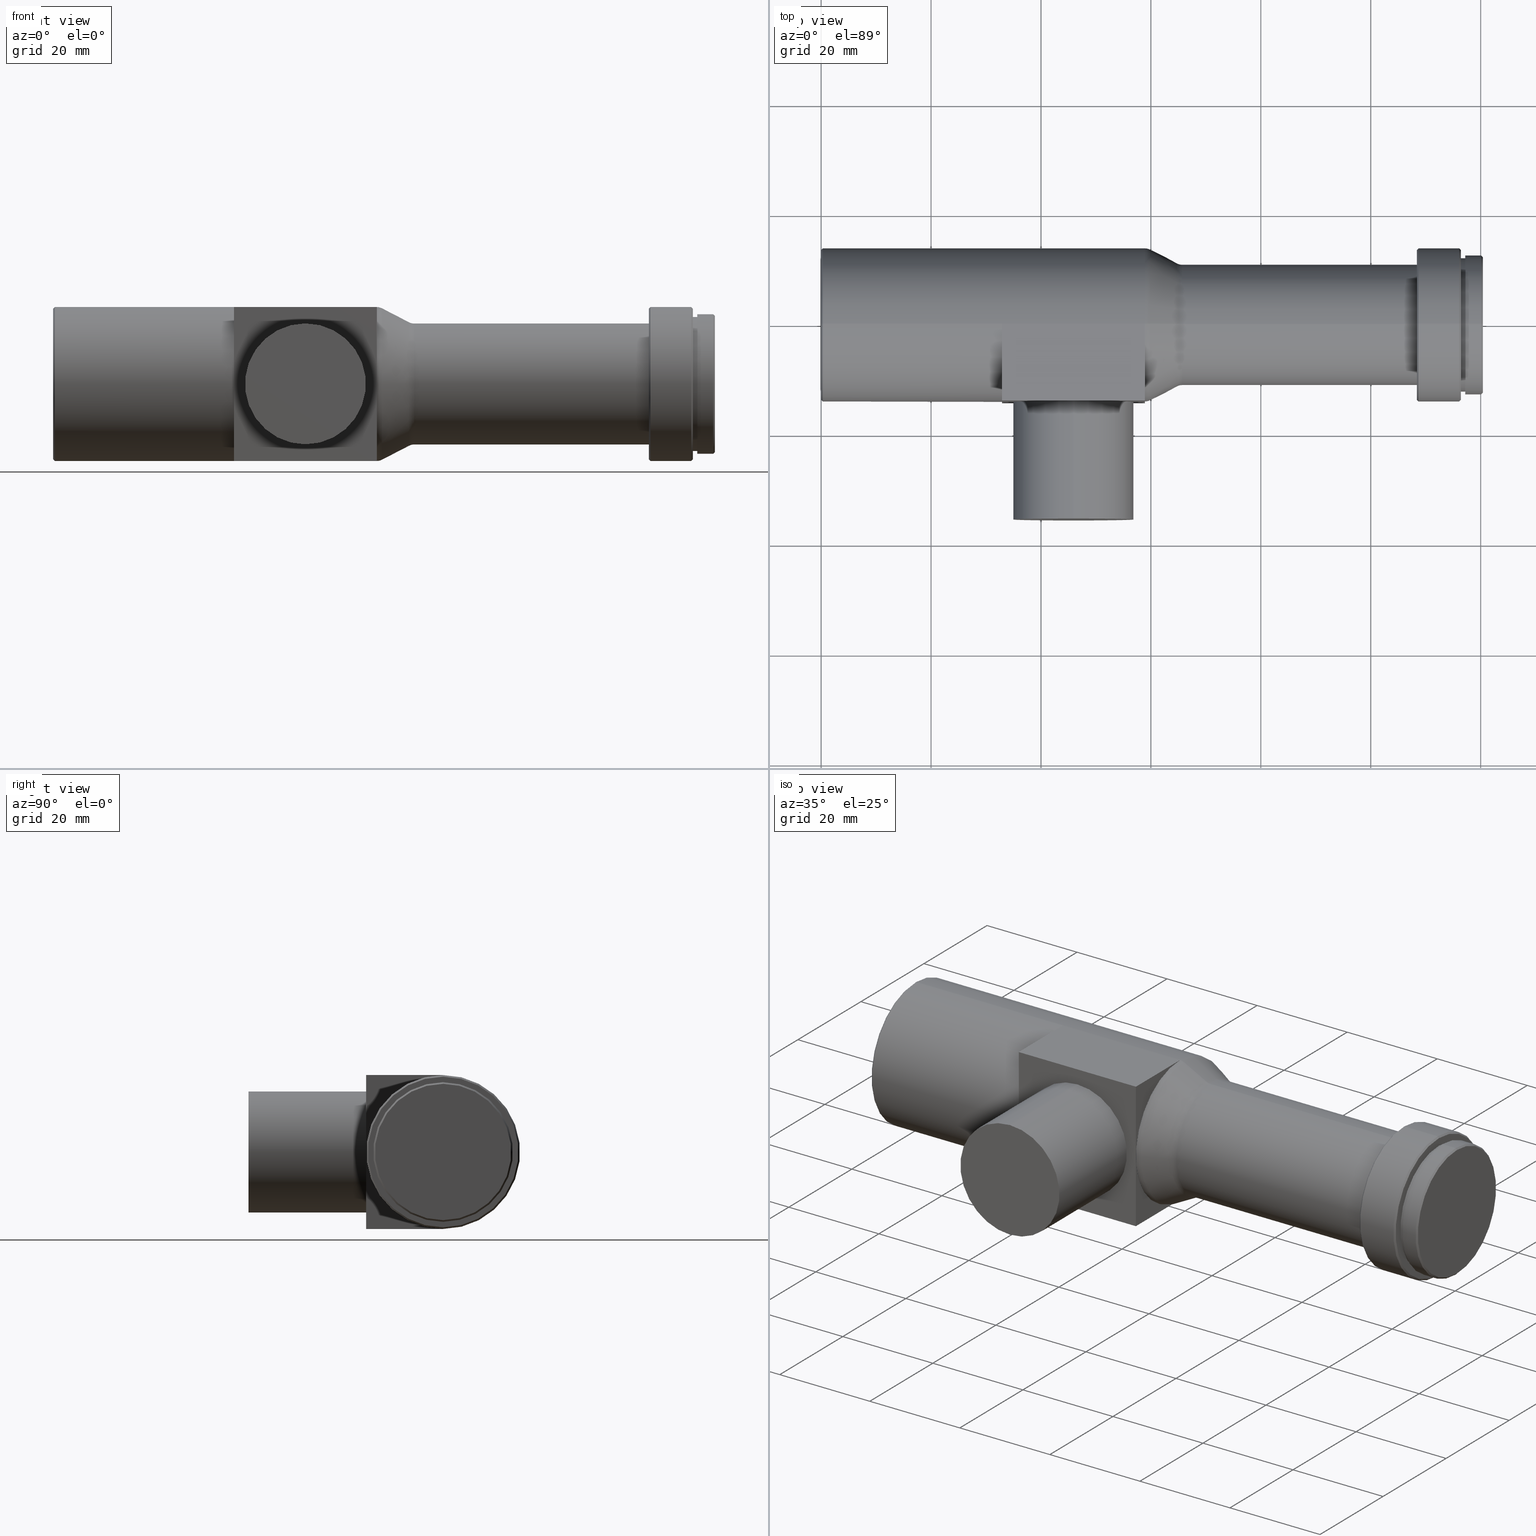
[diagram: canonical four-view strip — front | top / right | iso, engineering-drawing reading convention]
A machine part, canonical four-view strip (front | top / right | iso — engineering-drawing reading convention). The complete STEP part file that produces these views, byte-faithful:
ISO-10303-21;
HEADER;
FILE_DESCRIPTION (( 'STEP AP203' ),
    '1' );
FILE_NAME ('WWH30-63CTV3.STEP',
    '2021-05-11T01:28:06',
    ( 'Windows User' ),
    ( 'P R C' ),
    'SwSTEP 2.0',
    'SolidWorks 2017',
    '' );
FILE_SCHEMA (( 'CONFIG_CONTROL_DESIGN' ));
ENDSEC;

DATA;
#1 = APPROVAL ( #116, 'δָ��' ) ;
#2 = DATE_AND_TIME ( #231, #485 ) ;
#3 = DIRECTION ( 'NONE',  ( -1.000000000000000000, -0.0000000000000000000, -0.0000000000000000000 ) ) ;
#4 = VECTOR ( 'NONE', #928, 1000.000000000000000 ) ;
#5 = VERTEX_POINT ( 'NONE', #514 ) ;
#6 = LINE ( 'NONE', #364, #724 ) ;
#7 = ORIENTED_EDGE ( 'NONE', *, *, #562, .F. ) ;
#8 = EDGE_LOOP ( 'NONE', ( #350, #193, #617, #1047 ) ) ;
#9 = PLANE ( 'NONE',  #628 ) ;
#10 = AXIS2_PLACEMENT_3D ( 'NONE', #757, #57, #1104 ) ;
#11 = DIRECTION ( 'NONE',  ( -1.000000000000000000, -0.0000000000000000000, -0.0000000000000000000 ) ) ;
#12 = EDGE_CURVE ( 'NONE', #388, #1017, #452, .T. ) ;
#13 = DIRECTION ( 'NONE',  ( 0.0000000000000000000, 0.0000000000000000000, 1.000000000000000000 ) ) ;
#14 = EDGE_CURVE ( 'NONE', #892, #454, #1109, .T. ) ;
#15 = DATE_AND_TIME ( #101, #273 ) ;
#16 = CC_DESIGN_APPROVAL ( #902, ( #142 ) ) ;
#17 = VECTOR ( 'NONE', #993, 1000.000000000000000 ) ;
#18 = LINE ( 'NONE', #309, #931 ) ;
#19 = ORIENTED_EDGE ( 'NONE', *, *, #752, .T. ) ;
#20 = ORIENTED_EDGE ( 'NONE', *, *, #863, .F. ) ;
#21 = ORIENTED_EDGE ( 'NONE', *, *, #644, .T. ) ;
#22 = EDGE_CURVE ( 'NONE', #792, #184, #225, .T. ) ;
#23 = AXIS2_PLACEMENT_3D ( 'NONE', #253, #517, #1021 ) ;
#24 = DIRECTION ( 'NONE',  ( 0.0000000000000000000, -1.224646799147353500E-016, 1.000000000000000000 ) ) ;
#25 =( LENGTH_UNIT ( ) NAMED_UNIT ( * ) SI_UNIT ( .MILLI., .METRE. ) );
#26 = DIRECTION ( 'NONE',  ( 0.0000000000000000000, 0.0000000000000000000, -1.000000000000000000 ) ) ;
#27 = DIRECTION ( 'NONE',  ( -0.0000000000000000000, 1.000000000000000000, 1.224646799147353200E-016 ) ) ;
#28 =( NAMED_UNIT ( * ) SI_UNIT ( $, .STERADIAN. ) SOLID_ANGLE_UNIT ( ) );
#29 = APPROVAL_DATE_TIME ( #502, #902 ) ;
#30 = AXIS2_PLACEMENT_3D ( 'NONE', #84, #771, #692 ) ;
#31 = VECTOR ( 'NONE', #595, 1000.000000000000000 ) ;
#32 = DIRECTION ( 'NONE',  ( 0.0000000000000000000, 0.0000000000000000000, 1.000000000000000000 ) ) ;
#33 = EDGE_LOOP ( 'NONE', ( #947, #157, #160 ) ) ;
#34 = ORIENTED_EDGE ( 'NONE', *, *, #230, .F. ) ;
#35 = CARTESIAN_POINT ( 'NONE',  ( 59.83222511313034200, 0.0000000000000000000, 0.0000000000000000000 ) ) ;
#36 = VERTEX_POINT ( 'NONE', #768 ) ;
#37 = ORIENTED_EDGE ( 'NONE', *, *, #716, .T. ) ;
#38 = VERTEX_POINT ( 'NONE', #855 ) ;
#39 = EDGE_CURVE ( 'NONE', #36, #77, #462, .T. ) ;
#40 = DIRECTION ( 'NONE',  ( 0.0000000000000000000, 0.0000000000000000000, 1.000000000000000000 ) ) ;
#41 = AXIS2_PLACEMENT_3D ( 'NONE', #343, #418, #1024 ) ;
#42 = CARTESIAN_POINT ( 'NONE',  ( 117.2000000000000000, 0.0000000000000000000, 0.0000000000000000000 ) ) ;
#43 = DIRECTION ( 'NONE',  ( -0.0000000000000000000, -1.000000000000000000, -0.0000000000000000000 ) ) ;
#44 = PERSON_AND_ORGANIZATION ( #1004, #314 ) ;
#45 = CARTESIAN_POINT ( 'NONE',  ( 117.2000000000000000, 0.0000000000000000000, 12.20000000000000300 ) ) ;
#46 = EDGE_CURVE ( 'NONE', #396, #584, #489, .T. ) ;
#47 = CARTESIAN_POINT ( 'NONE',  ( 0.0000000000000000000, 1.714505518806294400E-015, -13.99999999999999800 ) ) ;
#48 = FACE_OUTER_BOUND ( 'NONE', #842, .T. ) ;
#49 = FACE_OUTER_BOUND ( 'NONE', #161, .T. ) ;
#50 = ORIENTED_EDGE ( 'NONE', *, *, #477, .F. ) ;
#51 = FACE_OUTER_BOUND ( 'NONE', #883, .T. ) ;
#52 = DIRECTION ( 'NONE',  ( -1.000000000000000000, -0.0000000000000000000, -0.0000000000000000000 ) ) ;
#53 = ADVANCED_FACE ( 'NONE', ( #989, #427 ), #937, .F. ) ;
#54 = ORIENTED_EDGE ( 'NONE', *, *, #644, .F. ) ;
#55 = DIRECTION ( 'NONE',  ( -1.000000000000000000, -0.0000000000000000000, -0.0000000000000000000 ) ) ;
#56 = CARTESIAN_POINT ( 'NONE',  ( 64.76777488686968800, 0.0000000000000000000, 11.22356471368810000 ) ) ;
#57 = DIRECTION ( 'NONE',  ( -1.000000000000000000, -0.0000000000000000000, -0.0000000000000000000 ) ) ;
#58 = CARTESIAN_POINT ( 'NONE',  ( 120.4000000000000100, 0.0000000000000000000, 0.0000000000000000000 ) ) ;
#59 = APPROVAL_PERSON_ORGANIZATION ( #44, #1, #206 ) ;
#60 = CARTESIAN_POINT ( 'NONE',  ( 45.89999999999999900, -35.39999999999999900, -10.99999999999999600 ) ) ;
#61 = ADVANCED_FACE ( 'NONE', ( #194 ), #948, .T. ) ;
#62 = CIRCLE ( 'NONE', #264, 13.70000000000000100 ) ;
#63 = EDGE_CURVE ( 'NONE', #584, #829, #1081, .T. ) ;
#64 = VERTEX_POINT ( 'NONE', #582 ) ;
#65 = CYLINDRICAL_SURFACE ( 'NONE', #1039, 12.70000000000000300 ) ;
#66 = EDGE_LOOP ( 'NONE', ( #277, #1044, #319, #657 ) ) ;
#67 = VERTEX_POINT ( 'NONE', #72 ) ;
#68 = DIRECTION ( 'NONE',  ( 0.0000000000000000000, 0.0000000000000000000, -1.000000000000000000 ) ) ;
#69 = DIRECTION ( 'NONE',  ( -1.000000000000000000, -0.0000000000000000000, -0.0000000000000000000 ) ) ;
#70 = DIRECTION ( 'NONE',  ( -0.0000000000000000000, 1.000000000000000000, -0.0000000000000000000 ) ) ;
#71 = CARTESIAN_POINT ( 'NONE',  ( 116.4000000000000100, 0.0000000000000000000, 12.20000000000000300 ) ) ;
#72 = CARTESIAN_POINT ( 'NONE',  ( 108.6999999999999900, 1.714505518806294600E-015, 14.00000000000000000 ) ) ;
#73 = DIRECTION ( 'NONE',  ( 0.0000000000000000000, 0.0000000000000000000, 1.000000000000000000 ) ) ;
#74 = DIRECTION ( 'NONE',  ( 0.0000000000000000000, 0.0000000000000000000, -1.000000000000000000 ) ) ;
#75 = EDGE_CURVE ( 'NONE', #36, #666, #397, .T. ) ;
#76 = VECTOR ( 'NONE', #52, 1000.000000000000000 ) ;
#77 = VERTEX_POINT ( 'NONE', #678 ) ;
#78 = FACE_OUTER_BOUND ( 'NONE', #478, .T. ) ;
#79 = CARTESIAN_POINT ( 'NONE',  ( 108.3999999999999900, 11.00000000000000000, 0.0000000000000000000 ) ) ;
#80 = ORIENTED_EDGE ( 'NONE', *, *, #482, .T. ) ;
#81 = VERTEX_POINT ( 'NONE', #848 ) ;
#82 = CARTESIAN_POINT ( 'NONE',  ( 45.89999999999999900, -35.39999999999999900, 0.0000000000000000000 ) ) ;
#83 = CC_DESIGN_PERSON_AND_ORGANIZATION_ASSIGNMENT ( #127, #721, ( #444 ) ) ;
#84 = CARTESIAN_POINT ( 'NONE',  ( 64.76777488686968800, 0.0000000000000000000, 0.0000000000000000000 ) ) ;
#85 = EDGE_CURVE ( 'NONE', #1017, #5, #1054, .T. ) ;
#86 = DIRECTION ( 'NONE',  ( 1.000000000000000000, 0.0000000000000000000, 0.0000000000000000000 ) ) ;
#87 = AXIS2_PLACEMENT_3D ( 'NONE', #246, #339, #963 ) ;
#88 = CARTESIAN_POINT ( 'NONE',  ( 0.0000000000000000000, 0.0000000000000000000, 0.0000000000000000000 ) ) ;
#89 = CYLINDRICAL_SURFACE ( 'NONE', #990, 14.00000000000000000 ) ;
#90 = DIRECTION ( 'NONE',  ( -0.0000000000000000000, 1.000000000000000000, -0.0000000000000000000 ) ) ;
#91 = CIRCLE ( 'NONE', #972, 13.77643528631190000 ) ;
#92 = EDGE_LOOP ( 'NONE', ( #531, #544, #891, #950 ) ) ;
#93 = EDGE_LOOP ( 'NONE', ( #50, #867, #507, #118, #933 ) ) ;
#94 = AXIS2_PLACEMENT_3D ( 'NONE', #1011, #1007, #334 ) ;
#95 = ORIENTED_EDGE ( 'NONE', *, *, #448, .T. ) ;
#96 = DIRECTION ( 'NONE',  ( 0.0000000000000000000, 0.0000000000000000000, 1.000000000000000000 ) ) ;
#97 = EDGE_CURVE ( 'NONE', #892, #67, #857, .T. ) ;
#98 = DIRECTION ( 'NONE',  ( -1.000000000000000000, -0.0000000000000000000, -0.0000000000000000000 ) ) ;
#99 = EDGE_CURVE ( 'NONE', #454, #541, #173, .T. ) ;
#100 = CARTESIAN_POINT ( 'NONE',  ( 32.89999999999999900, -14.00000000000000000, 14.00000000000000000 ) ) ;
#101 = CALENDAR_DATE ( 2021, 11, 5 ) ;
#102 = DIRECTION ( 'NONE',  ( -1.000000000000000000, -0.0000000000000000000, -0.0000000000000000000 ) ) ;
#103 = CIRCLE ( 'NONE', #325, 13.70000000000000100 ) ;
#104 = ORIENTED_EDGE ( 'NONE', *, *, #240, .F. ) ;
#105 = VECTOR ( 'NONE', #729, 1000.000000000000000 ) ;
#106 = EDGE_LOOP ( 'NONE', ( #175, #159, #95, #776 ) ) ;
#107 = ORIENTED_EDGE ( 'NONE', *, *, #1102, .F. ) ;
#108 = EDGE_LOOP ( 'NONE', ( #589, #894, #1046 ) ) ;
#109 = EDGE_CURVE ( 'NONE', #38, #666, #6, .T. ) ;
#110 = DIRECTION ( 'NONE',  ( 0.0000000000000000000, 0.0000000000000000000, 1.000000000000000000 ) ) ;
#111 = CARTESIAN_POINT ( 'NONE',  ( 108.3999999999999900, 0.0000000000000000000, -13.70000000000000100 ) ) ;
#112 = APPLICATION_CONTEXT ( 'configuration controlled 3d designs of mechanical parts and assemblies' ) ;
#113 = LOCAL_TIME ( 9, 28, 6.000000000000000000, #694 ) ;
#114 = VECTOR ( 'NONE', #153, 1000.000000000000000 ) ;
#115 = CARTESIAN_POINT ( 'NONE',  ( 64.76777488686968800, 0.0000000000000000000, 0.0000000000000000000 ) ) ;
#116 = APPROVAL_STATUS ( 'not_yet_approved' ) ;
#117 = CIRCLE ( 'NONE', #866, 13.70000000000000100 ) ;
#118 = ORIENTED_EDGE ( 'NONE', *, *, #155, .F. ) ;
#119 = FACE_OUTER_BOUND ( 'NONE', #108, .T. ) ;
#120 = ORIENTED_EDGE ( 'NONE', *, *, #651, .T. ) ;
#121 = DIRECTION ( 'NONE',  ( -1.000000000000000000, -0.0000000000000000000, -0.0000000000000000000 ) ) ;
#122 = APPLICATION_PROTOCOL_DEFINITION ( 'international standard', 'config_control_design', 1994, #112 ) ;
#123 = EDGE_CURVE ( 'NONE', #426, #642, #145, .T. ) ;
#124 = DIRECTION ( 'NONE',  ( 0.0000000000000000000, 0.0000000000000000000, -1.000000000000000000 ) ) ;
#125 = EDGE_CURVE ( 'NONE', #1083, #616, #374, .T. ) ;
#126 = DIRECTION ( 'NONE',  ( -0.0000000000000000000, 0.0000000000000000000, 1.000000000000000000 ) ) ;
#127 = PERSON_AND_ORGANIZATION ( #1004, #314 ) ;
#128 = AXIS2_PLACEMENT_3D ( 'NONE', #82, #259, #859 ) ;
#129 = CIRCLE ( 'NONE', #1088, 12.40000000000000400 ) ;
#130 = VERTEX_POINT ( 'NONE', #349 ) ;
#131 = VECTOR ( 'NONE', #547, 1000.000000000000000 ) ;
#132 = CARTESIAN_POINT ( 'NONE',  ( 65.68662072461721400, 0.0000000000000000000, 0.0000000000000000000 ) ) ;
#133 = VERTEX_POINT ( 'NONE', #1113 ) ;
#134 = ORIENTED_EDGE ( 'NONE', *, *, #443, .F. ) ;
#135 = ORIENTED_EDGE ( 'NONE', *, *, #695, .T. ) ;
#136 = AXIS2_PLACEMENT_3D ( 'NONE', #35, #563, #910 ) ;
#137 = ADVANCED_FACE ( 'NONE', ( #119 ), #434, .F. ) ;
#138 = DIRECTION ( 'NONE',  ( -1.000000000000000000, -0.0000000000000000000, -0.0000000000000000000 ) ) ;
#139 = DIRECTION ( 'NONE',  ( 0.0000000000000000000, 0.0000000000000000000, 1.000000000000000000 ) ) ;
#140 = ADVANCED_FACE ( 'NONE', ( #439 ), #351, .T. ) ;
#141 = CIRCLE ( 'NONE', #727, 12.20000000000000300 ) ;
#142 = PRODUCT_DEFINITION ( 'δ֪', '', #444, #888 ) ;
#143 = LINE ( 'NONE', #149, #411 ) ;
#144 = ORIENTED_EDGE ( 'NONE', *, *, #123, .T. ) ;
#145 = LINE ( 'NONE', #946, #802 ) ;
#146 = DIRECTION ( 'NONE',  ( 0.0000000000000000000, 0.0000000000000000000, -1.000000000000000000 ) ) ;
#147 = VERTEX_POINT ( 'NONE', #445 ) ;
#148 = ADVANCED_FACE ( 'NONE', ( #1001 ), #9, .T. ) ;
#149 = CARTESIAN_POINT ( 'NONE',  ( 116.4000000000000100, 0.0000000000000000000, 13.70000000000000100 ) ) ;
#150 = AXIS2_PLACEMENT_3D ( 'NONE', #390, #495, #68 ) ;
#151 = ADVANCED_FACE ( 'NONE', ( #51 ), #65, .T. ) ;
#152 = PERSON_AND_ORGANIZATION ( #1004, #314 ) ;
#153 = DIRECTION ( 'NONE',  ( -0.0000000000000000000, -1.000000000000000000, -0.0000000000000000000 ) ) ;
#154 = CIRCLE ( 'NONE', #1009, 13.99999999999999800 ) ;
#155 = EDGE_CURVE ( 'NONE', #77, #666, #289, .T. ) ;
#156 = DIRECTION ( 'NONE',  ( 0.0000000000000000000, 0.0000000000000000000, -1.000000000000000000 ) ) ;
#157 = ORIENTED_EDGE ( 'NONE', *, *, #85, .T. ) ;
#158 = FACE_OUTER_BOUND ( 'NONE', #302, .T. ) ;
#159 = ORIENTED_EDGE ( 'NONE', *, *, #536, .T. ) ;
#160 = ORIENTED_EDGE ( 'NONE', *, *, #942, .T. ) ;
#161 = EDGE_LOOP ( 'NONE', ( #747, #412, #80, #134 ) ) ;
#162 = CARTESIAN_POINT ( 'NONE',  ( 32.89999999999999900, -14.00000000000000000, 0.0000000000000000000 ) ) ;
#163 = DIRECTION ( 'NONE',  ( -1.000000000000000000, -0.0000000000000000000, -0.0000000000000000000 ) ) ;
#164 = CARTESIAN_POINT ( 'NONE',  ( 32.89999999999999900, -14.00000000000000000, 14.00000000000000000 ) ) ;
#165 = EDGE_CURVE ( 'NONE', #895, #267, #265, .T. ) ;
#166 = CARTESIAN_POINT ( 'NONE',  ( 116.4000000000000100, 1.494069094959771300E-015, -12.20000000000000300 ) ) ;
#167 = DIRECTION ( 'NONE',  ( 0.0000000000000000000, 0.0000000000000000000, 1.000000000000000000 ) ) ;
#168 = AXIS2_PLACEMENT_3D ( 'NONE', #546, #630, #1040 ) ;
#169 = CARTESIAN_POINT ( 'NONE',  ( 58.89999999999999100, -14.00000000000000000, 14.00000000000000000 ) ) ;
#170 = CYLINDRICAL_SURFACE ( 'NONE', #667, 14.00000000000000000 ) ;
#171 = CIRCLE ( 'NONE', #329, 12.70000000000000300 ) ;
#172 = ORIENTED_EDGE ( 'NONE', *, *, #443, .T. ) ;
#173 = LINE ( 'NONE', #1101, #602 ) ;
#174 = CARTESIAN_POINT ( 'NONE',  ( 45.89999999999999900, 0.0000000000000000000, -10.99999999999999600 ) ) ;
#175 = ORIENTED_EDGE ( 'NONE', *, *, #794, .F. ) ;
#176 = ADVANCED_FACE ( 'NONE', ( #573 ), #361, .T. ) ;
#177 = DIRECTION ( 'NONE',  ( 0.0000000000000000000, 0.0000000000000000000, 1.000000000000000000 ) ) ;
#178 = EDGE_CURVE ( 'NONE', #792, #520, #235, .T. ) ;
#179 = CARTESIAN_POINT ( 'NONE',  ( 116.4000000000000100, 0.0000000000000000000, 0.0000000000000000000 ) ) ;
#180 = CC_DESIGN_SECURITY_CLASSIFICATION ( #978, ( #444 ) ) ;
#181 = DIRECTION ( 'NONE',  ( 0.0000000000000000000, 0.0000000000000000000, 1.000000000000000000 ) ) ;
#182 = CIRCLE ( 'NONE', #819, 13.99999999999999800 ) ;
#183 = DIRECTION ( 'NONE',  ( 0.0000000000000000000, 0.0000000000000000000, 1.000000000000000000 ) ) ;
#184 = VERTEX_POINT ( 'NONE', #782 ) ;
#185 = CIRCLE ( 'NONE', #956, 11.00000000000000200 ) ;
#186 = EDGE_CURVE ( 'NONE', #616, #1083, #395, .T. ) ;
#187 = ORIENTED_EDGE ( 'NONE', *, *, #14, .F. ) ;
#188 = EDGE_LOOP ( 'NONE', ( #488, #976 ) ) ;
#189 = AXIS2_PLACEMENT_3D ( 'NONE', #421, #511, #1022 ) ;
#190 = AXIS2_PLACEMENT_3D ( 'NONE', #864, #693, #356 ) ;
#191 = FACE_OUTER_BOUND ( 'NONE', #8, .T. ) ;
#192 = LINE ( 'NONE', #223, #105 ) ;
#193 = ORIENTED_EDGE ( 'NONE', *, *, #562, .T. ) ;
#194 = FACE_OUTER_BOUND ( 'NONE', #66, .T. ) ;
#195 = CARTESIAN_POINT ( 'NONE',  ( 65.68662072461721400, 1.592040838891559100E-015, -13.00000000000000000 ) ) ;
#196 = ORIENTED_EDGE ( 'NONE', *, *, #851, .F. ) ;
#197 = EDGE_CURVE ( 'NONE', #81, #130, #999, .T. ) ;
#198 = CC_DESIGN_PERSON_AND_ORGANIZATION_ASSIGNMENT ( #838, #715, ( #897 ) ) ;
#199 = CARTESIAN_POINT ( 'NONE',  ( 0.2999999999999999900, 0.0000000000000000000, 0.0000000000000000000 ) ) ;
#200 = DIRECTION ( 'NONE',  ( 0.0000000000000000000, 0.0000000000000000000, 1.000000000000000000 ) ) ;
#201 = DIRECTION ( 'NONE',  ( 0.0000000000000000000, 0.0000000000000000000, 1.000000000000000000 ) ) ;
#202 = APPROVAL_STATUS ( 'not_yet_approved' ) ;
#203 = AXIS2_PLACEMENT_3D ( 'NONE', #967, #862, #357 ) ;
#204 = VECTOR ( 'NONE', #543, 1000.000000000000000 ) ;
#205 = DIRECTION ( 'NONE',  ( -1.000000000000000000, -0.0000000000000000000, -0.0000000000000000000 ) ) ;
#206 = APPROVAL_ROLE ( '' ) ;
#207 = CONICAL_SURFACE ( 'NONE', #1036, 13.70000000000000100, 0.7853981633974569400 ) ;
#208 = ORIENTED_EDGE ( 'NONE', *, *, #99, .F. ) ;
#209 = ORIENTED_EDGE ( 'NONE', *, *, #677, .T. ) ;
#210 = EDGE_CURVE ( 'NONE', #642, #847, #171, .T. ) ;
#211 = EDGE_LOOP ( 'NONE', ( #951, #711, #451, #971 ) ) ;
#212 = VERTEX_POINT ( 'NONE', #111 ) ;
#213 = CARTESIAN_POINT ( 'NONE',  ( 108.3999999999999900, 0.0000000000000000000, 0.0000000000000000000 ) ) ;
#214 = CARTESIAN_POINT ( 'NONE',  ( 58.89999999999999100, -14.00000000000000000, 14.00000000000000000 ) ) ;
#215 = AXIS2_PLACEMENT_3D ( 'NONE', #195, #27, #24 ) ;
#216 = ADVANCED_FACE ( 'NONE', ( #843 ), #532, .T. ) ;
#217 = DIRECTION ( 'NONE',  ( 0.0000000000000000000, 0.0000000000000000000, 1.000000000000000000 ) ) ;
#218 = CARTESIAN_POINT ( 'NONE',  ( 58.91337927538280900, 0.0000000000000000000, 0.0000000000000000000 ) ) ;
#219 = EDGE_CURVE ( 'NONE', #67, #541, #570, .T. ) ;
#220 = CARTESIAN_POINT ( 'NONE',  ( 0.0000000000000000000, 0.0000000000000000000, -14.00000000000000000 ) ) ;
#221 = DIRECTION ( 'NONE',  ( 0.0000000000000000000, 0.0000000000000000000, 1.000000000000000000 ) ) ;
#222 = VECTOR ( 'NONE', #824, 1000.000000000000000 ) ;
#223 = CARTESIAN_POINT ( 'NONE',  ( 0.0000000000000000000, 1.347111479062088400E-015, -11.00000000000000000 ) ) ;
#224 = VERTEX_POINT ( 'NONE', #960 ) ;
#225 = LINE ( 'NONE', #929, #278 ) ;
#226 = ADVANCED_FACE ( 'NONE', ( #1093 ), #585, .T. ) ;
#227 = VERTEX_POINT ( 'NONE', #793 ) ;
#228 = EDGE_CURVE ( 'NONE', #267, #895, #117, .T. ) ;
#229 = DIRECTION ( 'NONE',  ( -1.000000000000000000, -0.0000000000000000000, -0.0000000000000000000 ) ) ;
#230 = EDGE_CURVE ( 'NONE', #792, #224, #868, .T. ) ;
#231 = CALENDAR_DATE ( 2021, 11, 5 ) ;
#232 = DIRECTION ( 'NONE',  ( -0.7071067811865414700, 0.0000000000000000000, 0.7071067811865536800 ) ) ;
#233 = LINE ( 'NONE', #565, #841 ) ;
#234 = ORIENTED_EDGE ( 'NONE', *, *, #228, .T. ) ;
#235 = CIRCLE ( 'NONE', #346, 11.22356471368810000 ) ;
#236 = DIRECTION ( 'NONE',  ( 0.7071067811865476800, 8.659560562354931600E-017, 0.7071067811865474600 ) ) ;
#237 = ORIENTED_EDGE ( 'NONE', *, *, #1048, .F. ) ;
#238 = ORIENTED_EDGE ( 'NONE', *, *, #405, .T. ) ;
#239 = CARTESIAN_POINT ( 'NONE',  ( 0.0000000000000000000, 1.494069094959771300E-015, -12.20000000000000300 ) ) ;
#240 = EDGE_CURVE ( 'NONE', #907, #224, #622, .T. ) ;
#241 = CARTESIAN_POINT ( 'NONE',  ( 108.6999999999999900, 1.714505518806294600E-015, 14.00000000000000000 ) ) ;
#242 = AXIS2_PLACEMENT_3D ( 'NONE', #836, #1003, #925 ) ;
#243 = CARTESIAN_POINT ( 'NONE',  ( 120.4000000000000100, 0.0000000000000000000, 0.0000000000000000000 ) ) ;
#244 = DIRECTION ( 'NONE',  ( 0.0000000000000000000, 1.000000000000000000, 0.0000000000000000000 ) ) ;
#245 = COORDINATED_UNIVERSAL_TIME_OFFSET ( 8, 0, .AHEAD. ) ;
#246 = CARTESIAN_POINT ( 'NONE',  ( 0.0000000000000000000, 0.0000000000000000000, 0.0000000000000000000 ) ) ;
#247 = CYLINDRICAL_SURFACE ( 'NONE', #417, 12.20000000000000300 ) ;
#248 = AXIS2_PLACEMENT_3D ( 'NONE', #965, #877, #874 ) ;
#249 = CARTESIAN_POINT ( 'NONE',  ( 0.0000000000000000000, 1.555301434917138800E-015, -12.70000000000000300 ) ) ;
#250 = LINE ( 'NONE', #300, #985 ) ;
#251 = ORIENTED_EDGE ( 'NONE', *, *, #431, .T. ) ;
#252 = VERTEX_POINT ( 'NONE', #367 ) ;
#253 = CARTESIAN_POINT ( 'NONE',  ( 117.2000000000000000, 0.0000000000000000000, 0.0000000000000000000 ) ) ;
#254 = EDGE_CURVE ( 'NONE', #318, #454, #1015, .T. ) ;
#255 = DIRECTION ( 'NONE',  ( 0.0000000000000000000, 0.0000000000000000000, 1.000000000000000000 ) ) ;
#256 = CC_DESIGN_DATE_AND_TIME_ASSIGNMENT ( #2, #1049, ( #978 ) ) ;
#257 = ADVANCED_FACE ( 'NONE', ( #276 ), #333, .T. ) ;
#258 = CARTESIAN_POINT ( 'NONE',  ( 108.6999999999999900, 0.0000000000000000000, 0.0000000000000000000 ) ) ;
#259 = DIRECTION ( 'NONE',  ( -0.0000000000000000000, 1.000000000000000000, -0.0000000000000000000 ) ) ;
#260 = FACE_OUTER_BOUND ( 'NONE', #934, .T. ) ;
#261 = DIRECTION ( 'NONE',  ( 1.000000000000000000, 0.0000000000000000000, 0.0000000000000000000 ) ) ;
#262 = CYLINDRICAL_SURFACE ( 'NONE', #1082, 12.70000000000000300 ) ;
#263 = ORIENTED_EDGE ( 'NONE', *, *, #873, .F. ) ;
#264 = AXIS2_PLACEMENT_3D ( 'NONE', #527, #1059, #32 ) ;
#265 = CIRCLE ( 'NONE', #995, 13.70000000000000100 ) ;
#266 = CARTESIAN_POINT ( 'NONE',  ( 58.89999999999999100, -14.00000000000000000, -14.00000000000000000 ) ) ;
#267 = VERTEX_POINT ( 'NONE', #467 ) ;
#268 = ORIENTED_EDGE ( 'NONE', *, *, #700, .F. ) ;
#269 = ORIENTED_EDGE ( 'NONE', *, *, #186, .F. ) ;
#270 = DIRECTION ( 'NONE',  ( -1.000000000000000000, -0.0000000000000000000, -0.0000000000000000000 ) ) ;
#271 = EDGE_CURVE ( 'NONE', #1034, #1017, #1078, .T. ) ;
#272 = DIRECTION ( 'NONE',  ( -1.000000000000000000, 0.0000000000000000000, 0.0000000000000000000 ) ) ;
#273 = LOCAL_TIME ( 9, 28, 6.000000000000000000, #245 ) ;
#274 = CIRCLE ( 'NONE', #168, 13.99999999999999800 ) ;
#275 = DIRECTION ( 'NONE',  ( -1.000000000000000000, -0.0000000000000000000, -0.0000000000000000000 ) ) ;
#276 = FACE_OUTER_BOUND ( 'NONE', #908, .T. ) ;
#277 = ORIENTED_EDGE ( 'NONE', *, *, #354, .F. ) ;
#278 = VECTOR ( 'NONE', #840, 1000.000000000000000 ) ;
#279 = AXIS2_PLACEMENT_3D ( 'NONE', #1037, #869, #807 ) ;
#280 = ORIENTED_EDGE ( 'NONE', *, *, #431, .F. ) ;
#281 = DIRECTION ( 'NONE',  ( -1.000000000000000000, -0.0000000000000000000, -0.0000000000000000000 ) ) ;
#282 = APPROVAL_ROLE ( '' ) ;
#283 = DIRECTION ( 'NONE',  ( 0.0000000000000000000, 0.0000000000000000000, 1.000000000000000000 ) ) ;
#284 = AXIS2_PLACEMENT_3D ( 'NONE', #1035, #353, #780 ) ;
#285 = DIRECTION ( 'NONE',  ( 0.0000000000000000000, 0.0000000000000000000, 1.000000000000000000 ) ) ;
#286 = LINE ( 'NONE', #249, #4 ) ;
#287 = DIRECTION ( 'NONE',  ( -1.000000000000000000, -0.0000000000000000000, -0.0000000000000000000 ) ) ;
#288 = ORIENTED_EDGE ( 'NONE', *, *, #818, .T. ) ;
#289 = CIRCLE ( 'NONE', #284, 13.99999999999999800 ) ;
#290 = CARTESIAN_POINT ( 'NONE',  ( 0.0000000000000000000, 0.0000000000000000000, 0.0000000000000000000 ) ) ;
#291 = APPROVAL_ROLE ( '' ) ;
#292 = EDGE_LOOP ( 'NONE', ( #410, #463, #429, #1097 ) ) ;
#293 = EDGE_CURVE ( 'NONE', #5, #616, #372, .T. ) ;
#294 = ORIENTED_EDGE ( 'NONE', *, *, #919, .F. ) ;
#295 = ORIENTED_EDGE ( 'NONE', *, *, #311, .T. ) ;
#296 = DIRECTION ( 'NONE',  ( -0.0000000000000000000, -0.0000000000000000000, -1.000000000000000000 ) ) ;
#297 = EDGE_CURVE ( 'NONE', #1034, #388, #383, .T. ) ;
#298 = CALENDAR_DATE ( 2021, 11, 5 ) ;
#299 = CARTESIAN_POINT ( 'NONE',  ( 32.89999999999999900, 0.0000000000000000000, 14.00000000000000000 ) ) ;
#300 = CARTESIAN_POINT ( 'NONE',  ( 108.6999999999999900, 0.0000000000000000000, -14.00000000000000000 ) ) ;
#301 = CIRCLE ( 'NONE', #688, 12.40000000000000400 ) ;
#302 = EDGE_LOOP ( 'NONE', ( #438, #764, #845, #107 ) ) ;
#303 = FACE_OUTER_BOUND ( 'NONE', #791, .T. ) ;
#304 = ORIENTED_EDGE ( 'NONE', *, *, #178, .T. ) ;
#305 = VECTOR ( 'NONE', #244, 1000.000000000000000 ) ;
#306 = DIRECTION ( 'NONE',  ( 0.0000000000000000000, 0.0000000000000000000, 1.000000000000000000 ) ) ;
#307 = AXIS2_PLACEMENT_3D ( 'NONE', #649, #631, #124 ) ;
#308 = DIRECTION ( 'NONE',  ( -0.0000000000000000000, 1.000000000000000000, 1.224646799147353200E-016 ) ) ;
#309 = CARTESIAN_POINT ( 'NONE',  ( 32.89999999999999900, 0.0000000000000000000, -14.00000000000000000 ) ) ;
#310 = DIRECTION ( 'NONE',  ( -1.000000000000000000, -0.0000000000000000000, -0.0000000000000000000 ) ) ;
#311 = EDGE_CURVE ( 'NONE', #541, #67, #1030, .T. ) ;
#312 = DIRECTION ( 'NONE',  ( -1.000000000000000000, -0.0000000000000000000, -0.0000000000000000000 ) ) ;
#313 = ADVANCED_FACE ( 'NONE', ( #303, #789 ), #1063, .F. ) ;
#314 = ORGANIZATION ( 'δָ��', 'δָ��', '' ) ;
#315 = CARTESIAN_POINT ( 'NONE',  ( 117.2000000000000000, 12.20000000000000300, 0.0000000000000000000 ) ) ;
#316 = LINE ( 'NONE', #214, #638 ) ;
#317 = DIRECTION ( 'NONE',  ( -1.000000000000000000, -0.0000000000000000000, -0.0000000000000000000 ) ) ;
#318 = VERTEX_POINT ( 'NONE', #549 ) ;
#319 = ORIENTED_EDGE ( 'NONE', *, *, #851, .T. ) ;
#320 = UNCERTAINTY_MEASURE_WITH_UNIT (LENGTH_MEASURE( 1.000000000000000100E-005 ), #25, 'distance_accuracy_value', 'NONE');
#321 = ORIENTED_EDGE ( 'NONE', *, *, #63, .T. ) ;
#322 = ORIENTED_EDGE ( 'NONE', *, *, #986, .T. ) ;
#323 = CARTESIAN_POINT ( 'NONE',  ( 117.2000000000000000, 0.0000000000000000000, 0.0000000000000000000 ) ) ;
#324 = DIRECTION ( 'NONE',  ( 1.000000000000000000, 0.0000000000000000000, 0.0000000000000000000 ) ) ;
#325 = AXIS2_PLACEMENT_3D ( 'NONE', #213, #479, #468 ) ;
#326 = DIRECTION ( 'NONE',  ( 0.0000000000000000000, 0.0000000000000000000, 1.000000000000000000 ) ) ;
#327 = ADVANCED_FACE ( 'NONE', ( #425 ), #893, .T. ) ;
#328 = EDGE_CURVE ( 'NONE', #77, #801, #316, .T. ) ;
#329 = AXIS2_PLACEMENT_3D ( 'NONE', #720, #707, #201 ) ;
#330 = COORDINATED_UNIVERSAL_TIME_OFFSET ( 8, 0, .AHEAD. ) ;
#331 = VECTOR ( 'NONE', #296, 1000.000000000000000 ) ;
#332 = ORIENTED_EDGE ( 'NONE', *, *, #887, .T. ) ;
#333 = CONICAL_SURFACE ( 'NONE', #732, 11.22356471368810000, 0.4773453823736718000 ) ;
#334 = DIRECTION ( 'NONE',  ( 0.0000000000000000000, 0.0000000000000000000, 1.000000000000000000 ) ) ;
#335 = ORIENTED_EDGE ( 'NONE', *, *, #604, .T. ) ;
#336 = ORIENTED_EDGE ( 'NONE', *, *, #230, .T. ) ;
#337 = DIRECTION ( 'NONE',  ( 0.0000000000000000000, 0.0000000000000000000, 1.000000000000000000 ) ) ;
#338 = EDGE_CURVE ( 'NONE', #212, #541, #250, .T. ) ;
#339 = DIRECTION ( 'NONE',  ( 0.0000000000000000000, 0.0000000000000000000, 1.000000000000000000 ) ) ;
#340 = PLANE ( 'NONE',  #341 ) ;
#341 = AXIS2_PLACEMENT_3D ( 'NONE', #687, #598, #26 ) ;
#342 = CARTESIAN_POINT ( 'NONE',  ( 0.2999999999999999900, 1.714505518806294800E-015, -14.00000000000000200 ) ) ;
#343 = CARTESIAN_POINT ( 'NONE',  ( 0.0000000000000000000, 0.0000000000000000000, 0.0000000000000000000 ) ) ;
#344 = APPROVAL_PERSON_ORGANIZATION ( #1010, #661, #291 ) ;
#345 = FACE_OUTER_BOUND ( 'NONE', #611, .T. ) ;
#346 = AXIS2_PLACEMENT_3D ( 'NONE', #712, #275, #13 ) ;
#347 = CARTESIAN_POINT ( 'NONE',  ( 45.89999999999999900, -14.00000000000000000, 10.99999999999999600 ) ) ;
#348 = FACE_OUTER_BOUND ( 'NONE', #413, .T. ) ;
#349 = CARTESIAN_POINT ( 'NONE',  ( 117.2000000000000000, 1.555301434917138800E-015, -12.70000000000000300 ) ) ;
#350 = ORIENTED_EDGE ( 'NONE', *, *, #604, .F. ) ;
#351 = CYLINDRICAL_SURFACE ( 'NONE', #572, 11.00000000000000000 ) ;
#352 = ORIENTED_EDGE ( 'NONE', *, *, #660, .T. ) ;
#353 = DIRECTION ( 'NONE',  ( -1.000000000000000000, 0.0000000000000000000, 0.0000000000000000000 ) ) ;
#354 = EDGE_CURVE ( 'NONE', #592, #224, #192, .T. ) ;
#355 = CARTESIAN_POINT ( 'NONE',  ( 32.89999999999999900, -14.00000000000000000, -14.00000000000000000 ) ) ;
#356 = DIRECTION ( 'NONE',  ( 0.0000000000000000000, 0.0000000000000000000, -1.000000000000000000 ) ) ;
#357 = DIRECTION ( 'NONE',  ( 0.0000000000000000000, 0.0000000000000000000, 1.000000000000000000 ) ) ;
#358 = APPROVAL_DATE_TIME ( #458, #1 ) ;
#359 = FACE_OUTER_BOUND ( 'NONE', #106, .T. ) ;
#360 = ORIENTED_EDGE ( 'NONE', *, *, #919, .T. ) ;
#361 = CONICAL_SURFACE ( 'NONE', #633, 14.00000000000000000, 0.7853981633974569400 ) ;
#362 = EDGE_LOOP ( 'NONE', ( #522, #1002 ) ) ;
#363 = ORIENTED_EDGE ( 'NONE', *, *, #240, .T. ) ;
#364 = CARTESIAN_POINT ( 'NONE',  ( 0.0000000000000000000, 0.0000000000000000000, 13.99999999999999800 ) ) ;
#365 = CLOSED_SHELL ( 'NONE', ( #740, #469, #577, #837, #552, #918, #176, #140, #1076, #257, #779, #484, #216, #226, #690, #566, #941, #834, #652, #1072, #61, #1085, #430, #1100, #474, #313, #822, #905, #151, #1031, #758, #560, #673, #53, #137, #898, #497, #327, #753, #148 ) ) ;
#366 = AXIS2_PLACEMENT_3D ( 'NONE', #658, #1087, #1008 ) ;
#367 = CARTESIAN_POINT ( 'NONE',  ( 58.89999999999999100, 0.0000000000000000000, -14.00000000000000000 ) ) ;
#368 = MECHANICAL_CONTEXT ( 'NONE', #112, 'mechanical' ) ;
#369 = VECTOR ( 'NONE', #236, 1000.000000000000000 ) ;
#370 = CARTESIAN_POINT ( 'NONE',  ( 0.0000000000000000000, 0.0000000000000000000, 0.0000000000000000000 ) ) ;
#371 = PERSON_AND_ORGANIZATION_ROLE ( 'design_supplier' ) ;
#372 = LINE ( 'NONE', #47, #222 ) ;
#373 = ORIENTED_EDGE ( 'NONE', *, *, #297, .T. ) ;
#374 = CIRCLE ( 'NONE', #1073, 14.00000000000000000 ) ;
#375 = CC_DESIGN_APPROVAL ( #1, ( #444 ) ) ;
#376 = ORIENTED_EDGE ( 'NONE', *, *, #271, .F. ) ;
#377 = DIRECTION ( 'NONE',  ( 0.0000000000000000000, 0.0000000000000000000, 1.000000000000000000 ) ) ;
#378 = DIRECTION ( 'NONE',  ( -1.000000000000000000, -0.0000000000000000000, -0.0000000000000000000 ) ) ;
#379 = DIRECTION ( 'NONE',  ( 0.0000000000000000000, 0.0000000000000000000, 1.000000000000000000 ) ) ;
#380 = DIRECTION ( 'NONE',  ( -1.000000000000000000, -0.0000000000000000000, -0.0000000000000000000 ) ) ;
#381 = FACE_OUTER_BOUND ( 'NONE', #1014, .T. ) ;
#382 = ORIENTED_EDGE ( 'NONE', *, *, #97, .F. ) ;
#383 = LINE ( 'NONE', #645, #1045 ) ;
#384 = CARTESIAN_POINT ( 'NONE',  ( 45.89999999999999900, -35.39999999999999900, 10.99999999999999600 ) ) ;
#385 = EDGE_LOOP ( 'NONE', ( #670, #322, #461, #54 ) ) ;
#386 = AXIS2_PLACEMENT_3D ( 'NONE', #796, #885, #1055 ) ;
#387 = ORIENTED_EDGE ( 'NONE', *, *, #986, .F. ) ;
#388 = VERTEX_POINT ( 'NONE', #1075 ) ;
#389 = CC_DESIGN_DATE_AND_TIME_ASSIGNMENT ( #15, #453, ( #142 ) ) ;
#390 = CARTESIAN_POINT ( 'NONE',  ( 32.89999999999999900, -14.00000000000000000, 14.00000000000000000 ) ) ;
#391 = EDGE_CURVE ( 'NONE', #1053, #847, #763, .T. ) ;
#392 = CARTESIAN_POINT ( 'NONE',  ( 108.6999999999999900, 0.0000000000000000000, 0.0000000000000000000 ) ) ;
#393 = AXIS2_PLACEMENT_3D ( 'NONE', #525, #952, #377 ) ;
#394 = LINE ( 'NONE', #241, #826 ) ;
#395 = CIRCLE ( 'NONE', #1096, 14.00000000000000000 ) ;
#396 = VERTEX_POINT ( 'NONE', #384 ) ;
#397 = LINE ( 'NONE', #169, #305 ) ;
#398 = CARTESIAN_POINT ( 'NONE',  ( 120.4000000000000100, 1.536931732929928600E-015, -12.40000000000000400 ) ) ;
#399 = ORIENTED_EDGE ( 'NONE', *, *, #338, .F. ) ;
#400 = CARTESIAN_POINT ( 'NONE',  ( 59.83222511313034200, 0.0000000000000000000, 0.0000000000000000000 ) ) ;
#401 = CARTESIAN_POINT ( 'NONE',  ( 0.2999999999999999900, 0.0000000000000000000, 0.0000000000000000000 ) ) ;
#402 = DIRECTION ( 'NONE',  ( 0.0000000000000000000, 0.0000000000000000000, 1.000000000000000000 ) ) ;
#403 = EDGE_CURVE ( 'NONE', #224, #907, #185, .T. ) ;
#404 = CARTESIAN_POINT ( 'NONE',  ( 120.4000000000000100, 0.0000000000000000000, 0.0000000000000000000 ) ) ;
#405 = EDGE_CURVE ( 'NONE', #252, #5, #18, .T. ) ;
#406 = CARTESIAN_POINT ( 'NONE',  ( 0.0000000000000000000, 0.0000000000000000000, 14.00000000000000000 ) ) ;
#407 = DIRECTION ( 'NONE',  ( 0.0000000000000000000, 0.0000000000000000000, 1.000000000000000000 ) ) ;
#408 = FACE_OUTER_BOUND ( 'NONE', #1069, .T. ) ;
#409 = CARTESIAN_POINT ( 'NONE',  ( 108.6999999999999900, 0.0000000000000000000, -14.00000000000000000 ) ) ;
#410 = ORIENTED_EDGE ( 'NONE', *, *, #741, .F. ) ;
#411 = VECTOR ( 'NONE', #232, 1000.000000000000000 ) ;
#412 = ORIENTED_EDGE ( 'NONE', *, *, #700, .T. ) ;
#413 = EDGE_LOOP ( 'NONE', ( #234, #603 ) ) ;
#414 = EDGE_CURVE ( 'NONE', #147, #184, #736, .T. ) ;
#415 = CARTESIAN_POINT ( 'NONE',  ( 32.89999999999999900, 0.0000000000000000000, 14.00000000000000000 ) ) ;
#416 = CARTESIAN_POINT ( 'NONE',  ( 0.2999999999999999900, 0.0000000000000000000, 0.0000000000000000000 ) ) ;
#417 = AXIS2_PLACEMENT_3D ( 'NONE', #904, #983, #221 ) ;
#418 = DIRECTION ( 'NONE',  ( -1.000000000000000000, -0.0000000000000000000, -0.0000000000000000000 ) ) ;
#419 = CARTESIAN_POINT ( 'NONE',  ( 0.0000000000000000000, 0.0000000000000000000, 0.0000000000000000000 ) ) ;
#420 = DIRECTION ( 'NONE',  ( 0.0000000000000000000, -0.0000000000000000000, 1.000000000000000000 ) ) ;
#421 = CARTESIAN_POINT ( 'NONE',  ( 65.68662072461721400, 0.0000000000000000000, 0.0000000000000000000 ) ) ;
#422 = AXIS2_PLACEMENT_3D ( 'NONE', #674, #496, #156 ) ;
#423 = CARTESIAN_POINT ( 'NONE',  ( 32.89999999999999900, -14.00000000000000000, -14.00000000000000000 ) ) ;
#424 = FACE_BOUND ( 'NONE', #654, .T. ) ;
#425 = FACE_OUTER_BOUND ( 'NONE', #292, .T. ) ;
#426 = VERTEX_POINT ( 'NONE', #994 ) ;
#427 = FACE_OUTER_BOUND ( 'NONE', #936, .T. ) ;
#428 = CARTESIAN_POINT ( 'NONE',  ( 0.0000000000000000000, 0.0000000000000000000, 13.99999999999999800 ) ) ;
#429 = ORIENTED_EDGE ( 'NONE', *, *, #942, .F. ) ;
#430 = ADVANCED_FACE ( 'NONE', ( #78 ), #683, .T. ) ;
#431 = EDGE_CURVE ( 'NONE', #133, #1098, #612, .T. ) ;
#432 = DIRECTION ( 'NONE',  ( 0.0000000000000000000, 0.0000000000000000000, 1.000000000000000000 ) ) ;
#433 = CARTESIAN_POINT ( 'NONE',  ( 64.76777488686968800, 0.0000000000000000000, 0.0000000000000000000 ) ) ;
#434 = PLANE ( 'NONE',  #938 ) ;
#435 = AXIS2_PLACEMENT_3D ( 'NONE', #315, #575, #146 ) ;
#436 = DIRECTION ( 'NONE',  ( -0.0000000000000000000, 1.000000000000000000, -0.0000000000000000000 ) ) ;
#437 = VECTOR ( 'NONE', #90, 1000.000000000000000 ) ;
#438 = ORIENTED_EDGE ( 'NONE', *, *, #210, .T. ) ;
#439 = FACE_OUTER_BOUND ( 'NONE', #615, .T. ) ;
#440 = EDGE_LOOP ( 'NONE', ( #1032, #922, #625 ) ) ;
#441 = ORIENTED_EDGE ( 'NONE', *, *, #818, .F. ) ;
#442 = ORIENTED_EDGE ( 'NONE', *, *, #926, .F. ) ;
#443 = EDGE_CURVE ( 'NONE', #454, #892, #774, .T. ) ;
#444 = PRODUCT_DEFINITION_FORMATION_WITH_SPECIFIED_SOURCE ( '�κ�', '', #897, .NOT_KNOWN. ) ;
#445 = CARTESIAN_POINT ( 'NONE',  ( 59.83222511313034200, 0.0000000000000000000, 13.77643528631190000 ) ) ;
#446 = DIRECTION ( 'NONE',  ( 0.0000000000000000000, 0.0000000000000000000, 1.000000000000000000 ) ) ;
#447 = APPROVAL_STATUS ( 'not_yet_approved' ) ;
#448 = EDGE_CURVE ( 'NONE', #147, #38, #957, .T. ) ;
#449 = CIRCLE ( 'NONE', #795, 12.20000000000000300 ) ;
#450 = CIRCLE ( 'NONE', #594, 12.70000000000000300 ) ;
#451 = ORIENTED_EDGE ( 'NONE', *, *, #210, .F. ) ;
#452 = LINE ( 'NONE', #164, #508 ) ;
#453 = DATE_TIME_ROLE ( 'creation_date' ) ;
#454 = VERTEX_POINT ( 'NONE', #578 ) ;
#455 = EDGE_CURVE ( 'NONE', #847, #642, #450, .T. ) ;
#456 = CARTESIAN_POINT ( 'NONE',  ( 58.89999999999999100, -14.00000000000000000, -14.00000000000000000 ) ) ;
#457 = CARTESIAN_POINT ( 'NONE',  ( 0.0000000000000000000, 0.0000000000000000000, 12.70000000000000300 ) ) ;
#458 = DATE_AND_TIME ( #903, #113 ) ;
#459 = CARTESIAN_POINT ( 'NONE',  ( 117.2000000000000000, 0.0000000000000000000, 0.0000000000000000000 ) ) ;
#460 = FACE_OUTER_BOUND ( 'NONE', #949, .T. ) ;
#461 = ORIENTED_EDGE ( 'NONE', *, *, #125, .T. ) ;
#462 = LINE ( 'NONE', #754, #655 ) ;
#463 = ORIENTED_EDGE ( 'NONE', *, *, #775, .F. ) ;
#464 = ORIENTED_EDGE ( 'NONE', *, *, #576, .T. ) ;
#465 = CARTESIAN_POINT ( 'NONE',  ( 45.89999999999999900, -14.00000000000000000, -10.99999999999999600 ) ) ;
#466 = ORIENTED_EDGE ( 'NONE', *, *, #228, .F. ) ;
#467 = CARTESIAN_POINT ( 'NONE',  ( 0.0000000000000000000, 0.0000000000000000000, -13.70000000000000100 ) ) ;
#468 = DIRECTION ( 'NONE',  ( 0.0000000000000000000, 0.0000000000000000000, 1.000000000000000000 ) ) ;
#469 = ADVANCED_FACE ( 'NONE', ( #506 ), #1052, .T. ) ;
#470 = AXIS2_PLACEMENT_3D ( 'NONE', #719, #606, #379 ) ;
#471 = PERSON_AND_ORGANIZATION ( #1004, #314 ) ;
#472 = CIRCLE ( 'NONE', #513, 13.70000000000000100 ) ;
#473 = DIRECTION ( 'NONE',  ( 0.0000000000000000000, 0.0000000000000000000, 1.000000000000000000 ) ) ;
#474 = ADVANCED_FACE ( 'NONE', ( #49 ), #879, .T. ) ;
#475 = FACE_OUTER_BOUND ( 'NONE', #574, .T. ) ;
#476 = ORIENTED_EDGE ( 'NONE', *, *, #219, .F. ) ;
#477 = EDGE_CURVE ( 'NONE', #64, #252, #599, .T. ) ;
#478 = EDGE_LOOP ( 'NONE', ( #748, #738, #640, #295 ) ) ;
#479 = DIRECTION ( 'NONE',  ( -1.000000000000000000, -0.0000000000000000000, -0.0000000000000000000 ) ) ;
#480 = DIRECTION ( 'NONE',  ( -1.000000000000000000, 0.0000000000000000000, -0.0000000000000000000 ) ) ;
#481 = CARTESIAN_POINT ( 'NONE',  ( 0.0000000000000000000, 0.0000000000000000000, 0.0000000000000000000 ) ) ;
#482 = EDGE_CURVE ( 'NONE', #227, #892, #143, .T. ) ;
#483 = DIRECTION ( 'NONE',  ( 0.0000000000000000000, 0.0000000000000000000, 1.000000000000000000 ) ) ;
#484 = ADVANCED_FACE ( 'NONE', ( #799 ), #538, .T. ) ;
#485 = LOCAL_TIME ( 9, 28, 6.000000000000000000, #981 ) ;
#486 = PLANE ( 'NONE',  #762 ) ;
#487 = VECTOR ( 'NONE', #629, 1000.000000000000000 ) ;
#488 = ORIENTED_EDGE ( 'NONE', *, *, #197, .T. ) ;
#489 = LINE ( 'NONE', #1099, #973 ) ;
#490 = CARTESIAN_POINT ( 'NONE',  ( 108.3999999999999900, 0.0000000000000000000, 0.0000000000000000000 ) ) ;
#491 = ORIENTED_EDGE ( 'NONE', *, *, #14, .T. ) ;
#492 = ORIENTED_EDGE ( 'NONE', *, *, #477, .T. ) ;
#493 = AXIS2_PLACEMENT_3D ( 'NONE', #1070, #730, #1074 ) ;
#494 = ORIENTED_EDGE ( 'NONE', *, *, #254, .T. ) ;
#495 = DIRECTION ( 'NONE',  ( 1.000000000000000000, 0.0000000000000000000, 0.0000000000000000000 ) ) ;
#496 = DIRECTION ( 'NONE',  ( 0.0000000000000000000, -1.000000000000000000, 0.0000000000000000000 ) ) ;
#497 = ADVANCED_FACE ( 'NONE', ( #475 ), #1090, .F. ) ;
#498 = AXIS2_PLACEMENT_3D ( 'NONE', #392, #639, #647 ) ;
#499 = CARTESIAN_POINT ( 'NONE',  ( 108.3999999999999900, 1.347111479062088400E-015, -11.00000000000000000 ) ) ;
#500 = CC_DESIGN_PERSON_AND_ORGANIZATION_ASSIGNMENT ( #966, #371, ( #444 ) ) ;
#501 = DIRECTION ( 'NONE',  ( -0.0000000000000000000, 1.000000000000000000, -0.0000000000000000000 ) ) ;
#502 = DATE_AND_TIME ( #785, #550 ) ;
#503 = DIRECTION ( 'NONE',  ( -1.000000000000000000, -0.0000000000000000000, -0.0000000000000000000 ) ) ;
#504 = LINE ( 'NONE', #174, #437 ) ;
#505 = CARTESIAN_POINT ( 'NONE',  ( 0.0000000000000000000, 0.0000000000000000000, 0.0000000000000000000 ) ) ;
#506 = FACE_OUTER_BOUND ( 'NONE', #211, .T. ) ;
#507 = ORIENTED_EDGE ( 'NONE', *, *, #109, .T. ) ;
#508 = VECTOR ( 'NONE', #596, 1000.000000000000000 ) ;
#509 = ORIENTED_EDGE ( 'NONE', *, *, #85, .F. ) ;
#510 = EDGE_CURVE ( 'NONE', #396, #921, #1107, .T. ) ;
#511 = DIRECTION ( 'NONE',  ( -1.000000000000000000, -0.0000000000000000000, -0.0000000000000000000 ) ) ;
#512 = CARTESIAN_POINT ( 'NONE',  ( 0.0000000000000000000, 0.0000000000000000000, 0.0000000000000000000 ) ) ;
#513 = AXIS2_PLACEMENT_3D ( 'NONE', #979, #138, #40 ) ;
#514 = CARTESIAN_POINT ( 'NONE',  ( 32.89999999999999900, 0.0000000000000000000, -13.99999999999999800 ) ) ;
#515 = PRODUCT_DEFINITION_SHAPE ( 'NONE', 'NONE',  #142 ) ;
#516 = CARTESIAN_POINT ( 'NONE',  ( 0.0000000000000000000, 0.0000000000000000000, 14.00000000000000000 ) ) ;
#517 = DIRECTION ( 'NONE',  ( -1.000000000000000000, -0.0000000000000000000, -0.0000000000000000000 ) ) ;
#518 = DIRECTION ( 'NONE',  ( 0.0000000000000000000, 0.0000000000000000000, 1.000000000000000000 ) ) ;
#519 = FACE_OUTER_BOUND ( 'NONE', #637, .T. ) ;
#520 = VERTEX_POINT ( 'NONE', #56 ) ;
#521 = EDGE_LOOP ( 'NONE', ( #571, #288, #144, #624 ) ) ;
#522 = ORIENTED_EDGE ( 'NONE', *, *, #684, .T. ) ;
#523 = ORIENTED_EDGE ( 'NONE', *, *, #186, .T. ) ;
#524 = ORIENTED_EDGE ( 'NONE', *, *, #403, .T. ) ;
#525 = CARTESIAN_POINT ( 'NONE',  ( 45.89999999999999900, 0.0000000000000000000, 0.0000000000000000000 ) ) ;
#526 = DIRECTION ( 'NONE',  ( 0.0000000000000000000, 0.0000000000000000000, 1.000000000000000000 ) ) ;
#527 = CARTESIAN_POINT ( 'NONE',  ( 116.4000000000000100, 0.0000000000000000000, 0.0000000000000000000 ) ) ;
#528 = LOCAL_TIME ( 9, 28, 6.000000000000000000, #996 ) ;
#529 = AXIS2_PLACEMENT_3D ( 'NONE', #79, #849, #927 ) ;
#530 = LINE ( 'NONE', #561, #17 ) ;
#531 = ORIENTED_EDGE ( 'NONE', *, *, #414, .T. ) ;
#532 = CYLINDRICAL_SURFACE ( 'NONE', #248, 13.99999999999999800 ) ;
#533 = ORIENTED_EDGE ( 'NONE', *, *, #328, .F. ) ;
#534 = ORIENTED_EDGE ( 'NONE', *, *, #775, .T. ) ;
#535 = AXIS2_PLACEMENT_3D ( 'NONE', #579, #70, #669 ) ;
#536 = EDGE_CURVE ( 'NONE', #184, #147, #91, .T. ) ;
#537 = APPROVAL_PERSON_ORGANIZATION ( #152, #902, #282 ) ;
#538 = CONICAL_SURFACE ( 'NONE', #1103, 14.00000000000000000, 0.7853981633974481700 ) ;
#539 = CARTESIAN_POINT ( 'NONE',  ( 64.76777488686968800, 1.530808498934191500E-015, -11.22356471368810000 ) ) ;
#540 = ORIENTED_EDGE ( 'NONE', *, *, #677, .F. ) ;
#541 = VERTEX_POINT ( 'NONE', #409 ) ;
#542 = DIRECTION ( 'NONE',  ( -1.000000000000000000, -0.0000000000000000000, -0.0000000000000000000 ) ) ;
#543 = DIRECTION ( 'NONE',  ( -1.000000000000000000, -0.0000000000000000000, -0.0000000000000000000 ) ) ;
#544 = ORIENTED_EDGE ( 'NONE', *, *, #794, .T. ) ;
#545 = ORIENTED_EDGE ( 'NONE', *, *, #909, .T. ) ;
#546 = CARTESIAN_POINT ( 'NONE',  ( 58.91337927538280900, 0.0000000000000000000, 0.0000000000000000000 ) ) ;
#547 = DIRECTION ( 'NONE',  ( -0.7071067811865414700, 8.659560562355008000E-017, -0.7071067811865536800 ) ) ;
#548 = AXIS2_PLACEMENT_3D ( 'NONE', #401, #1084, #662 ) ;
#549 = CARTESIAN_POINT ( 'NONE',  ( 116.4000000000000100, 1.696135816819084200E-015, -13.70000000000000100 ) ) ;
#550 = LOCAL_TIME ( 9, 28, 6.000000000000000000, #330 ) ;
#551 = CARTESIAN_POINT ( 'NONE',  ( 116.1000000000000100, 0.0000000000000000000, 14.00000000000000000 ) ) ;
#552 = ADVANCED_FACE ( 'NONE', ( #827 ), #207, .T. ) ;
#553 = CYLINDRICAL_SURFACE ( 'NONE', #853, 10.99999999999999600 ) ;
#554 = ORIENTED_EDGE ( 'NONE', *, *, #964, .T. ) ;
#555 = VECTOR ( 'NONE', #962, 1000.000000000000000 ) ;
#556 = CC_DESIGN_APPROVAL ( #661, ( #978 ) ) ;
#557 = VERTEX_POINT ( 'NONE', #760 ) ;
#558 = ORIENTED_EDGE ( 'NONE', *, *, #651, .F. ) ;
#559 = DIRECTION ( 'NONE',  ( 0.0000000000000000000, -1.224646799147353500E-016, 1.000000000000000000 ) ) ;
#560 = ADVANCED_FACE ( 'NONE', ( #709 ), #486, .F. ) ;
#561 = CARTESIAN_POINT ( 'NONE',  ( 0.0000000000000000000, 0.0000000000000000000, 11.00000000000000000 ) ) ;
#562 = EDGE_CURVE ( 'NONE', #921, #396, #1067, .T. ) ;
#563 = DIRECTION ( 'NONE',  ( -1.000000000000000000, -0.0000000000000000000, -0.0000000000000000000 ) ) ;
#564 = AXIS2_PLACEMENT_3D ( 'NONE', #512, #86, #74 ) ;
#565 = CARTESIAN_POINT ( 'NONE',  ( 32.89999999999999900, -14.00000000000000000, 14.00000000000000000 ) ) ;
#566 = ADVANCED_FACE ( 'NONE', ( #348 ), #689, .F. ) ;
#567 = PERSON_AND_ORGANIZATION ( #1004, #314 ) ;
#568 = LINE ( 'NONE', #1086, #114 ) ;
#569 = PLANE ( 'NONE',  #435 ) ;
#570 = CIRCLE ( 'NONE', #809, 14.00000000000000000 ) ;
#571 = ORIENTED_EDGE ( 'NONE', *, *, #391, .F. ) ;
#572 = AXIS2_PLACEMENT_3D ( 'NONE', #704, #605, #183 ) ;
#573 = FACE_OUTER_BOUND ( 'NONE', #1092, .T. ) ;
#574 = EDGE_LOOP ( 'NONE', ( #871, #881, #373, #739 ) ) ;
#575 = DIRECTION ( 'NONE',  ( 1.000000000000000000, 0.0000000000000000000, 0.0000000000000000000 ) ) ;
#576 = EDGE_CURVE ( 'NONE', #830, #988, #734, .T. ) ;
#577 = ADVANCED_FACE ( 'NONE', ( #158 ), #262, .T. ) ;
#578 = CARTESIAN_POINT ( 'NONE',  ( 116.1000000000000100, 1.714505518806294600E-015, -14.00000000000000000 ) ) ;
#579 = CARTESIAN_POINT ( 'NONE',  ( 45.89999999999999900, -14.00000000000000000, 0.0000000000000000000 ) ) ;
#580 = DIRECTION ( 'NONE',  ( -1.000000000000000000, -0.0000000000000000000, -0.0000000000000000000 ) ) ;
#581 = DIRECTION ( 'NONE',  ( -1.000000000000000000, -0.0000000000000000000, -0.0000000000000000000 ) ) ;
#582 = CARTESIAN_POINT ( 'NONE',  ( 58.91337927538280900, 1.714505518806294400E-015, -13.99999999999999800 ) ) ;
#583 = LINE ( 'NONE', #428, #610 ) ;
#584 = VERTEX_POINT ( 'NONE', #347 ) ;
#585 = CYLINDRICAL_SURFACE ( 'NONE', #713, 13.99999999999999800 ) ;
#586 = EDGE_CURVE ( 'NONE', #847, #130, #286, .T. ) ;
#587 = DIRECTION ( 'NONE',  ( -1.000000000000000000, -0.0000000000000000000, -0.0000000000000000000 ) ) ;
#588 = EDGE_LOOP ( 'NONE', ( #321, #545 ) ) ;
#589 = ORIENTED_EDGE ( 'NONE', *, *, #39, .T. ) ;
#590 = CARTESIAN_POINT ( 'NONE',  ( 58.89999999999999100, 0.0000000000000000000, 14.00000000000000000 ) ) ;
#591 = AXIS2_PLACEMENT_3D ( 'NONE', #613, #270, #886 ) ;
#592 = VERTEX_POINT ( 'NONE', #499 ) ;
#593 = PLANE ( 'NONE',  #529 ) ;
#594 = AXIS2_PLACEMENT_3D ( 'NONE', #912, #317, #326 ) ;
#595 = DIRECTION ( 'NONE',  ( 0.7071067811865476800, 0.0000000000000000000, -0.7071067811865474600 ) ) ;
#596 = DIRECTION ( 'NONE',  ( -0.0000000000000000000, -0.0000000000000000000, -1.000000000000000000 ) ) ;
#597 = TOROIDAL_SURFACE ( 'NONE', #189, 13.00000000000000000, 1.999999999999998200 ) ;
#598 = DIRECTION ( 'NONE',  ( 1.000000000000000000, 0.0000000000000000000, 0.0000000000000000000 ) ) ;
#599 = LINE ( 'NONE', #846, #653 ) ;
#600 = CARTESIAN_POINT ( 'NONE',  ( 34.89999999999999900, -35.39999999999999900, 0.0000000000000000000 ) ) ;
#601 = ORIENTED_EDGE ( 'NONE', *, *, #825, .T. ) ;
#602 = VECTOR ( 'NONE', #1043, 1000.000000000000000 ) ;
#603 = ORIENTED_EDGE ( 'NONE', *, *, #165, .T. ) ;
#604 = EDGE_CURVE ( 'NONE', #921, #829, #504, .T. ) ;
#605 = DIRECTION ( 'NONE',  ( -1.000000000000000000, -0.0000000000000000000, -0.0000000000000000000 ) ) ;
#606 = DIRECTION ( 'NONE',  ( -1.000000000000000000, -0.0000000000000000000, -0.0000000000000000000 ) ) ;
#607 = DIRECTION ( 'NONE',  ( 0.0000000000000000000, 0.0000000000000000000, -1.000000000000000000 ) ) ;
#608 = CARTESIAN_POINT ( 'NONE',  ( 64.76777488686968800, 0.0000000000000000000, 11.22356471368810000 ) ) ;
#609 = DIRECTION ( 'NONE',  ( 0.0000000000000000000, -0.0000000000000000000, -1.000000000000000000 ) ) ;
#610 = VECTOR ( 'NONE', #1023, 1000.000000000000000 ) ;
#611 = EDGE_LOOP ( 'NONE', ( #491, #920, #476, #382 ) ) ;
#612 = LINE ( 'NONE', #239, #854 ) ;
#613 = CARTESIAN_POINT ( 'NONE',  ( 0.0000000000000000000, 0.0000000000000000000, 0.0000000000000000000 ) ) ;
#614 = EDGE_CURVE ( 'NONE', #426, #1053, #129, .T. ) ;
#615 = EDGE_LOOP ( 'NONE', ( #209, #1000, #104, #196 ) ) ;
#616 = VERTEX_POINT ( 'NONE', #342 ) ;
#617 = ORIENTED_EDGE ( 'NONE', *, *, #46, .T. ) ;
#618 = AXIS2_PLACEMENT_3D ( 'NONE', #681, #1016, #337 ) ;
#619 = EDGE_CURVE ( 'NONE', #830, #133, #635, .T. ) ;
#620 = AXIS2_PLACEMENT_3D ( 'NONE', #811, #308, #559 ) ;
#621 = CIRCLE ( 'NONE', #705, 13.70000000000000100 ) ;
#622 = CIRCLE ( 'NONE', #386, 11.00000000000000200 ) ;
#623 = ORIENTED_EDGE ( 'NONE', *, *, #619, .F. ) ;
#624 = ORIENTED_EDGE ( 'NONE', *, *, #455, .F. ) ;
#625 = ORIENTED_EDGE ( 'NONE', *, *, #12, .F. ) ;
#626 = CARTESIAN_POINT ( 'NONE',  ( 116.4000000000000100, 1.677766114831874000E-015, -13.70000000000000100 ) ) ;
#627 = APPLICATION_PROTOCOL_DEFINITION ( 'international standard', 'config_control_design', 1994, #969 ) ;
#628 = AXIS2_PLACEMENT_3D ( 'NONE', #600, #861, #609 ) ;
#629 = DIRECTION ( 'NONE',  ( -0.8882176431559488700, 0.0000000000000000000, 0.4594229188737665200 ) ) ;
#630 = DIRECTION ( 'NONE',  ( -1.000000000000000000, -0.0000000000000000000, -0.0000000000000000000 ) ) ;
#631 = DIRECTION ( 'NONE',  ( 1.000000000000000000, 0.0000000000000000000, 0.0000000000000000000 ) ) ;
#632 =( NAMED_UNIT ( * ) PLANE_ANGLE_UNIT ( ) SI_UNIT ( $, .RADIAN. ) );
#633 = AXIS2_PLACEMENT_3D ( 'NONE', #258, #261, #607 ) ;
#634 = DATE_AND_TIME ( #298, #528 ) ;
#635 = CIRCLE ( 'NONE', #23, 12.20000000000000300 ) ;
#636 = CARTESIAN_POINT ( 'NONE',  ( 0.0000000000000000000, 1.696135816819084200E-015, 13.70000000000000100 ) ) ;
#637 = EDGE_LOOP ( 'NONE', ( #280, #699, #464, #1033 ) ) ;
#638 = VECTOR ( 'NONE', #900, 1000.000000000000000 ) ;
#639 = DIRECTION ( 'NONE',  ( -1.000000000000000000, -0.0000000000000000000, -0.0000000000000000000 ) ) ;
#640 = ORIENTED_EDGE ( 'NONE', *, *, #338, .T. ) ;
#641 = ORIENTED_EDGE ( 'NONE', *, *, #619, .T. ) ;
#642 = VERTEX_POINT ( 'NONE', #767 ) ;
#643 = DIRECTION ( 'NONE',  ( 0.0000000000000000000, 0.0000000000000000000, 1.000000000000000000 ) ) ;
#644 = EDGE_CURVE ( 'NONE', #267, #616, #1105, .T. ) ;
#645 = CARTESIAN_POINT ( 'NONE',  ( 32.89999999999999900, -14.00000000000000000, 14.00000000000000000 ) ) ;
#646 = AXIS2_PLACEMENT_3D ( 'NONE', #218, #817, #306 ) ;
#647 = DIRECTION ( 'NONE',  ( 0.0000000000000000000, 0.0000000000000000000, 1.000000000000000000 ) ) ;
#648 = CARTESIAN_POINT ( 'NONE',  ( 0.0000000000000000000, 0.0000000000000000000, 0.0000000000000000000 ) ) ;
#649 = CARTESIAN_POINT ( 'NONE',  ( 108.6999999999999900, 0.0000000000000000000, 0.0000000000000000000 ) ) ;
#650 = FACE_OUTER_BOUND ( 'NONE', #33, .T. ) ;
#651 = EDGE_CURVE ( 'NONE', #1034, #1083, #583, .T. ) ;
#652 = ADVANCED_FACE ( 'NONE', ( #786 ), #1064, .T. ) ;
#653 = VECTOR ( 'NONE', #755, 1000.000000000000000 ) ;
#654 = EDGE_LOOP ( 'NONE', ( #623, #1068 ) ) ;
#655 = VECTOR ( 'NONE', #770, 1000.000000000000000 ) ;
#656 = CARTESIAN_POINT ( 'NONE',  ( 108.3999999999999900, 0.0000000000000000000, 11.00000000000000000 ) ) ;
#657 = ORIENTED_EDGE ( 'NONE', *, *, #403, .F. ) ;
#658 = CARTESIAN_POINT ( 'NONE',  ( 116.1000000000000100, 0.0000000000000000000, 0.0000000000000000000 ) ) ;
#659 = DIRECTION ( 'NONE',  ( -1.000000000000000000, -0.0000000000000000000, -0.0000000000000000000 ) ) ;
#660 = EDGE_CURVE ( 'NONE', #252, #77, #154, .T. ) ;
#661 = APPROVAL ( #202, 'δָ��' ) ;
#662 = DIRECTION ( 'NONE',  ( 0.0000000000000000000, 0.0000000000000000000, -1.000000000000000000 ) ) ;
#663 = DIRECTION ( 'NONE',  ( -1.000000000000000000, -0.0000000000000000000, -0.0000000000000000000 ) ) ;
#664 = TOROIDAL_SURFACE ( 'NONE', #203, 12.00000000000000000, 2.000000000000000400 ) ;
#665 = DIRECTION ( 'NONE',  ( -1.000000000000000000, -0.0000000000000000000, -0.0000000000000000000 ) ) ;
#666 = VERTEX_POINT ( 'NONE', #590 ) ;
#667 = AXIS2_PLACEMENT_3D ( 'NONE', #481, #663, #745 ) ;
#668 = VECTOR ( 'NONE', #787, 1000.000000000000000 ) ;
#669 = DIRECTION ( 'NONE',  ( 0.0000000000000000000, 0.0000000000000000000, 1.000000000000000000 ) ) ;
#670 = ORIENTED_EDGE ( 'NONE', *, *, #165, .F. ) ;
#671 = VERTEX_POINT ( 'NONE', #423 ) ;
#672 = CARTESIAN_POINT ( 'NONE',  ( 116.4000000000000100, 0.0000000000000000000, 0.0000000000000000000 ) ) ;
#673 = ADVANCED_FACE ( 'NONE', ( #930 ), #340, .F. ) ;
#674 = CARTESIAN_POINT ( 'NONE',  ( 58.91337927538280900, 0.0000000000000000000, 12.00000000000000000 ) ) ;
#675 = EDGE_CURVE ( 'NONE', #520, #147, #906, .T. ) ;
#676 = CARTESIAN_POINT ( 'NONE',  ( 108.3999999999999900, 0.0000000000000000000, 0.0000000000000000000 ) ) ;
#677 = EDGE_CURVE ( 'NONE', #884, #592, #696, .T. ) ;
#678 = CARTESIAN_POINT ( 'NONE',  ( 58.89999999999999100, -14.00000000000000000, 0.0000000000000000000 ) ) ;
#679 = DIRECTION ( 'NONE',  ( 0.0000000000000000000, 0.0000000000000000000, 1.000000000000000000 ) ) ;
#680 = DIRECTION ( 'NONE',  ( -1.000000000000000000, 0.0000000000000000000, 0.0000000000000000000 ) ) ;
#681 = CARTESIAN_POINT ( 'NONE',  ( 116.1000000000000100, 0.0000000000000000000, 0.0000000000000000000 ) ) ;
#682 = CIRCLE ( 'NONE', #94, 10.99999999999999600 ) ;
#683 = CONICAL_SURFACE ( 'NONE', #307, 14.00000000000000000, 0.7853981633974569400 ) ;
#684 = EDGE_CURVE ( 'NONE', #988, #1098, #970, .T. ) ;
#685 = ORIENTED_EDGE ( 'NONE', *, *, #328, .T. ) ;
#686 = ORIENTED_EDGE ( 'NONE', *, *, #684, .F. ) ;
#687 = CARTESIAN_POINT ( 'NONE',  ( 32.89999999999999900, -14.00000000000000000, 14.00000000000000000 ) ) ;
#688 = AXIS2_PLACEMENT_3D ( 'NONE', #735, #310, #217 ) ;
#689 = PLANE ( 'NONE',  #564 ) ;
#690 = ADVANCED_FACE ( 'NONE', ( #48 ), #1012, .T. ) ;
#691 = AXIS2_PLACEMENT_3D ( 'NONE', #459, #542, #283 ) ;
#692 = DIRECTION ( 'NONE',  ( 0.0000000000000000000, 0.0000000000000000000, 1.000000000000000000 ) ) ;
#693 = DIRECTION ( 'NONE',  ( 1.000000000000000000, 0.0000000000000000000, 0.0000000000000000000 ) ) ;
#694 = COORDINATED_UNIVERSAL_TIME_OFFSET ( 8, 0, .AHEAD. ) ;
#695 = EDGE_CURVE ( 'NONE', #38, #64, #274, .T. ) ;
#696 = CIRCLE ( 'NONE', #470, 11.00000000000000000 ) ;
#697 = ORIENTED_EDGE ( 'NONE', *, *, #311, .F. ) ;
#698 = ORIENTED_EDGE ( 'NONE', *, *, #482, .F. ) ;
#699 = ORIENTED_EDGE ( 'NONE', *, *, #882, .T. ) ;
#700 = EDGE_CURVE ( 'NONE', #318, #227, #62, .T. ) ;
#701 = ORIENTED_EDGE ( 'NONE', *, *, #455, .T. ) ;
#702 = DIRECTION ( 'NONE',  ( -1.000000000000000000, -0.0000000000000000000, -0.0000000000000000000 ) ) ;
#703 = CARTESIAN_POINT ( 'NONE',  ( 0.2999999999999999900, 0.0000000000000000000, 0.0000000000000000000 ) ) ;
#704 = CARTESIAN_POINT ( 'NONE',  ( 0.0000000000000000000, 0.0000000000000000000, 0.0000000000000000000 ) ) ;
#705 = AXIS2_PLACEMENT_3D ( 'NONE', #490, #659, #483 ) ;
#706 = FACE_OUTER_BOUND ( 'NONE', #815, .T. ) ;
#707 = DIRECTION ( 'NONE',  ( -1.000000000000000000, -0.0000000000000000000, -0.0000000000000000000 ) ) ;
#708 = FACE_OUTER_BOUND ( 'NONE', #92, .T. ) ;
#709 = FACE_OUTER_BOUND ( 'NONE', #1018, .T. ) ;
#710 = ORIENTED_EDGE ( 'NONE', *, *, #39, .F. ) ;
#711 = ORIENTED_EDGE ( 'NONE', *, *, #391, .T. ) ;
#712 = CARTESIAN_POINT ( 'NONE',  ( 64.76777488686968800, 0.0000000000000000000, 0.0000000000000000000 ) ) ;
#713 = AXIS2_PLACEMENT_3D ( 'NONE', #290, #380, #446 ) ;
#714 = CARTESIAN_POINT ( 'NONE',  ( 108.6999999999999900, 0.0000000000000000000, 0.0000000000000000000 ) ) ;
#715 = PERSON_AND_ORGANIZATION_ROLE ( 'design_owner' ) ;
#716 = EDGE_CURVE ( 'NONE', #1017, #671, #945, .T. ) ;
#717 = ADVANCED_BREP_SHAPE_REPRESENTATION ( 'WWH30-63CTV3', ( #880, #87 ), #896 ) ;
#718 = FACE_OUTER_BOUND ( 'NONE', #959, .T. ) ;
#719 = CARTESIAN_POINT ( 'NONE',  ( 108.3999999999999900, 0.0000000000000000000, 0.0000000000000000000 ) ) ;
#720 = CARTESIAN_POINT ( 'NONE',  ( 120.1000000000000100, 0.0000000000000000000, 0.0000000000000000000 ) ) ;
#721 = PERSON_AND_ORGANIZATION_ROLE ( 'creator' ) ;
#722 = CYLINDRICAL_SURFACE ( 'NONE', #393, 10.99999999999999600 ) ;
#723 = ORIENTED_EDGE ( 'NONE', *, *, #22, .T. ) ;
#724 = VECTOR ( 'NONE', #11, 1000.000000000000000 ) ;
#725 = EDGE_LOOP ( 'NONE', ( #135, #492, #238, #831, #856, #558, #263, #1071 ) ) ;
#726 = ORIENTED_EDGE ( 'NONE', *, *, #63, .F. ) ;
#727 = AXIS2_PLACEMENT_3D ( 'NONE', #672, #587, #923 ) ;
#728 = DIRECTION ( 'NONE',  ( 1.000000000000000000, 0.0000000000000000000, 0.0000000000000000000 ) ) ;
#729 = DIRECTION ( 'NONE',  ( -1.000000000000000000, -0.0000000000000000000, -0.0000000000000000000 ) ) ;
#730 = DIRECTION ( 'NONE',  ( 0.0000000000000000000, -1.000000000000000000, 0.0000000000000000000 ) ) ;
#731 = DIRECTION ( 'NONE',  ( 0.0000000000000000000, 0.0000000000000000000, -1.000000000000000000 ) ) ;
#732 = AXIS2_PLACEMENT_3D ( 'NONE', #115, #378, #968 ) ;
#733 = CONICAL_SURFACE ( 'NONE', #783, 12.40000000000000400, 0.7853981633974569400 ) ;
#734 = LINE ( 'NONE', #935, #813 ) ;
#735 = CARTESIAN_POINT ( 'NONE',  ( 120.4000000000000100, 0.0000000000000000000, 0.0000000000000000000 ) ) ;
#736 = CIRCLE ( 'NONE', #136, 13.77643528631190000 ) ;
#737 = DIRECTION ( 'NONE',  ( -1.000000000000000000, 0.0000000000000000000, -0.0000000000000000000 ) ) ;
#738 = ORIENTED_EDGE ( 'NONE', *, *, #887, .F. ) ;
#739 = ORIENTED_EDGE ( 'NONE', *, *, #863, .T. ) ;
#740 = ADVANCED_FACE ( 'NONE', ( #408 ), #722, .T. ) ;
#741 = EDGE_CURVE ( 'NONE', #801, #252, #889, .T. ) ;
#742 = DIRECTION ( 'NONE',  ( 1.000000000000000000, 0.0000000000000000000, 0.0000000000000000000 ) ) ;
#743 = AXIS2_PLACEMENT_3D ( 'NONE', #433, #287, #96 ) ;
#744 = DIRECTION ( 'NONE',  ( -1.000000000000000000, -0.0000000000000000000, -0.0000000000000000000 ) ) ;
#745 = DIRECTION ( 'NONE',  ( 0.0000000000000000000, 0.0000000000000000000, 1.000000000000000000 ) ) ;
#746 = CIRCLE ( 'NONE', #493, 1.999999999999998200 ) ;
#747 = ORIENTED_EDGE ( 'NONE', *, *, #254, .F. ) ;
#748 = ORIENTED_EDGE ( 'NONE', *, *, #964, .F. ) ;
#749 = EDGE_LOOP ( 'NONE', ( #540, #237 ) ) ;
#750 = ORIENTED_EDGE ( 'NONE', *, *, #536, .F. ) ;
#751 = DIRECTION ( 'NONE',  ( 0.0000000000000000000, 0.0000000000000000000, -1.000000000000000000 ) ) ;
#752 = EDGE_CURVE ( 'NONE', #520, #792, #1091, .T. ) ;
#753 = ADVANCED_FACE ( 'NONE', ( #191 ), #553, .T. ) ;
#754 = CARTESIAN_POINT ( 'NONE',  ( 58.89999999999999100, -14.00000000000000000, 14.00000000000000000 ) ) ;
#755 = DIRECTION ( 'NONE',  ( -1.000000000000000000, -0.0000000000000000000, -0.0000000000000000000 ) ) ;
#756 = APPROVAL_DATE_TIME ( #634, #661 ) ;
#757 = CARTESIAN_POINT ( 'NONE',  ( 65.68662072461721400, 0.0000000000000000000, 0.0000000000000000000 ) ) ;
#758 = ADVANCED_FACE ( 'NONE', ( #460 ), #781, .F. ) ;
#759 = TOROIDAL_SURFACE ( 'NONE', #646, 12.00000000000000000, 2.000000000000000400 ) ;
#760 = CARTESIAN_POINT ( 'NONE',  ( 108.3999999999999900, 1.696135816819084200E-015, 13.70000000000000100 ) ) ;
#761 = EDGE_LOOP ( 'NONE', ( #34, #975, #790, #363 ) ) ;
#762 = AXIS2_PLACEMENT_3D ( 'NONE', #860, #1026, #177 ) ;
#763 = LINE ( 'NONE', #812, #131 ) ;
#764 = ORIENTED_EDGE ( 'NONE', *, *, #586, .T. ) ;
#765 = ORIENTED_EDGE ( 'NONE', *, *, #1102, .T. ) ;
#766 = ORIENTED_EDGE ( 'NONE', *, *, #510, .T. ) ;
#767 = CARTESIAN_POINT ( 'NONE',  ( 120.1000000000000100, 0.0000000000000000000, 12.70000000000000300 ) ) ;
#768 = CARTESIAN_POINT ( 'NONE',  ( 58.89999999999999100, -14.00000000000000000, 14.00000000000000000 ) ) ;
#769 = AXIS2_PLACEMENT_3D ( 'NONE', #833, #665, #402 ) ;
#770 = DIRECTION ( 'NONE',  ( -0.0000000000000000000, -0.0000000000000000000, -1.000000000000000000 ) ) ;
#771 = DIRECTION ( 'NONE',  ( -1.000000000000000000, -0.0000000000000000000, -0.0000000000000000000 ) ) ;
#772 = CARTESIAN_POINT ( 'NONE',  ( 0.0000000000000000000, 0.0000000000000000000, 0.0000000000000000000 ) ) ;
#773 = FACE_OUTER_BOUND ( 'NONE', #521, .T. ) ;
#774 = CIRCLE ( 'NONE', #366, 14.00000000000000000 ) ;
#775 = EDGE_CURVE ( 'NONE', #671, #801, #955, .T. ) ;
#776 = ORIENTED_EDGE ( 'NONE', *, *, #832, .F. ) ;
#777 = ORIENTED_EDGE ( 'NONE', *, *, #12, .T. ) ;
#778 = CARTESIAN_POINT ( 'NONE',  ( 58.89999999999999100, 0.0000000000000000000, 0.0000000000000000000 ) ) ;
#779 = ADVANCED_FACE ( 'NONE', ( #708 ), #664, .T. ) ;
#780 = DIRECTION ( 'NONE',  ( 0.0000000000000000000, 0.0000000000000000000, 1.000000000000000000 ) ) ;
#781 = PLANE ( 'NONE',  #279 ) ;
#782 = CARTESIAN_POINT ( 'NONE',  ( 59.83222511313034200, 1.700816128255273400E-015, -13.77643528631190000 ) ) ;
#783 = AXIS2_PLACEMENT_3D ( 'NONE', #404, #580, #1005 ) ;
#784 = DIRECTION ( 'NONE',  ( 1.000000000000000000, 0.0000000000000000000, 0.0000000000000000000 ) ) ;
#785 = CALENDAR_DATE ( 2021, 11, 5 ) ;
#786 = FACE_OUTER_BOUND ( 'NONE', #803, .T. ) ;
#787 = DIRECTION ( 'NONE',  ( -1.000000000000000000, -0.0000000000000000000, -0.0000000000000000000 ) ) ;
#788 = ORIENTED_EDGE ( 'NONE', *, *, #510, .F. ) ;
#789 = FACE_BOUND ( 'NONE', #362, .T. ) ;
#790 = ORIENTED_EDGE ( 'NONE', *, *, #804, .T. ) ;
#791 = EDGE_LOOP ( 'NONE', ( #916, #268 ) ) ;
#792 = VERTEX_POINT ( 'NONE', #539 ) ;
#793 = CARTESIAN_POINT ( 'NONE',  ( 116.4000000000000100, 0.0000000000000000000, 13.70000000000000100 ) ) ;
#794 = EDGE_CURVE ( 'NONE', #184, #64, #982, .T. ) ;
#795 = AXIS2_PLACEMENT_3D ( 'NONE', #42, #991, #643 ) ;
#796 = CARTESIAN_POINT ( 'NONE',  ( 65.68662072461721400, 0.0000000000000000000, 0.0000000000000000000 ) ) ;
#797 = LINE ( 'NONE', #457, #204 ) ;
#798 = TOROIDAL_SURFACE ( 'NONE', #10, 13.00000000000000000, 1.999999999999998200 ) ;
#799 = FACE_OUTER_BOUND ( 'NONE', #385, .T. ) ;
#800 = DIRECTION ( 'NONE',  ( 0.0000000000000000000, 1.000000000000000000, 0.0000000000000000000 ) ) ;
#801 = VERTEX_POINT ( 'NONE', #456 ) ;
#802 = VECTOR ( 'NONE', #1112, 1000.000000000000000 ) ;
#803 = EDGE_LOOP ( 'NONE', ( #858, #304, #816, #750 ) ) ;
#804 = EDGE_CURVE ( 'NONE', #520, #907, #746, .T. ) ;
#805 = DIRECTION ( 'NONE',  ( -1.000000000000000000, -0.0000000000000000000, -0.0000000000000000000 ) ) ;
#806 = PERSON_AND_ORGANIZATION_ROLE ( 'classification_officer' ) ;
#807 = DIRECTION ( 'NONE',  ( -0.0000000000000000000, 0.0000000000000000000, 1.000000000000000000 ) ) ;
#808 = CARTESIAN_POINT ( 'NONE',  ( 32.89999999999999900, 0.0000000000000000000, 0.0000000000000000000 ) ) ;
#809 = AXIS2_PLACEMENT_3D ( 'NONE', #714, #805, #110 ) ;
#810 = CIRCLE ( 'NONE', #839, 11.00000000000000000 ) ;
#811 = CARTESIAN_POINT ( 'NONE',  ( 58.91337927538280900, 1.469576158976823900E-015, -12.00000000000000000 ) ) ;
#812 = CARTESIAN_POINT ( 'NONE',  ( 120.4000000000000100, 1.518562030942718400E-015, -12.40000000000000400 ) ) ;
#813 = VECTOR ( 'NONE', #940, 1000.000000000000000 ) ;
#814 = ORIENTED_EDGE ( 'NONE', *, *, #219, .T. ) ;
#815 = EDGE_LOOP ( 'NONE', ( #208, #172, #1095, #697 ) ) ;
#816 = ORIENTED_EDGE ( 'NONE', *, *, #675, .T. ) ;
#817 = DIRECTION ( 'NONE',  ( -1.000000000000000000, -0.0000000000000000000, -0.0000000000000000000 ) ) ;
#818 = EDGE_CURVE ( 'NONE', #1053, #426, #301, .T. ) ;
#819 = AXIS2_PLACEMENT_3D ( 'NONE', #823, #911, #473 ) ;
#820 = CARTESIAN_POINT ( 'NONE',  ( 120.1000000000000100, 1.555301434917138800E-015, -12.70000000000000300 ) ) ;
#821 = CARTESIAN_POINT ( 'NONE',  ( 116.4000000000000100, 13.70000000000000100, 0.0000000000000000000 ) ) ;
#822 = ADVANCED_FACE ( 'NONE', ( #519 ), #247, .T. ) ;
#823 = CARTESIAN_POINT ( 'NONE',  ( 58.91337927538280900, 0.0000000000000000000, 0.0000000000000000000 ) ) ;
#824 = DIRECTION ( 'NONE',  ( -1.000000000000000000, -0.0000000000000000000, -0.0000000000000000000 ) ) ;
#825 = EDGE_CURVE ( 'NONE', #227, #318, #472, .T. ) ;
#826 = VECTOR ( 'NONE', #1094, 1000.000000000000000 ) ;
#827 = FACE_OUTER_BOUND ( 'NONE', #1108, .T. ) ;
#828 = DIRECTION ( 'NONE',  ( 0.0000000000000000000, 0.0000000000000000000, -1.000000000000000000 ) ) ;
#829 = VERTEX_POINT ( 'NONE', #465 ) ;
#830 = VERTEX_POINT ( 'NONE', #45 ) ;
#831 = ORIENTED_EDGE ( 'NONE', *, *, #293, .T. ) ;
#832 = EDGE_CURVE ( 'NONE', #64, #38, #182, .T. ) ;
#833 = CARTESIAN_POINT ( 'NONE',  ( 116.4000000000000100, 0.0000000000000000000, 0.0000000000000000000 ) ) ;
#834 = ADVANCED_FACE ( 'NONE', ( #359 ), #759, .T. ) ;
#835 = CARTESIAN_POINT ( 'NONE',  ( 0.2999999999999999900, 1.714505518806294600E-015, 14.00000000000000000 ) ) ;
#836 = CARTESIAN_POINT ( 'NONE',  ( 45.89999999999999900, -35.39999999999999900, 0.0000000000000000000 ) ) ;
#837 = ADVANCED_FACE ( 'NONE', ( #381 ), #865, .T. ) ;
#838 = PERSON_AND_ORGANIZATION ( #1004, #314 ) ;
#839 = AXIS2_PLACEMENT_3D ( 'NONE', #676, #1089, #73 ) ;
#840 = DIRECTION ( 'NONE',  ( -0.8882176431559488700, 5.626308070536922400E-017, -0.4594229188737665200 ) ) ;
#841 = VECTOR ( 'NONE', #728, 1000.000000000000000 ) ;
#842 = EDGE_LOOP ( 'NONE', ( #917, #509, #376, #120, #269 ) ) ;
#843 = FACE_OUTER_BOUND ( 'NONE', #725, .T. ) ;
#844 = ORIENTED_EDGE ( 'NONE', *, *, #46, .F. ) ;
#845 = ORIENTED_EDGE ( 'NONE', *, *, #197, .F. ) ;
#846 = CARTESIAN_POINT ( 'NONE',  ( 0.0000000000000000000, 1.714505518806294400E-015, -13.99999999999999800 ) ) ;
#847 = VERTEX_POINT ( 'NONE', #820 ) ;
#848 = CARTESIAN_POINT ( 'NONE',  ( 117.2000000000000000, 0.0000000000000000000, 12.70000000000000300 ) ) ;
#849 = DIRECTION ( 'NONE',  ( 1.000000000000000000, 0.0000000000000000000, 0.0000000000000000000 ) ) ;
#850 = DIRECTION ( 'NONE',  ( 0.0000000000000000000, 1.000000000000000000, 0.0000000000000000000 ) ) ;
#851 = EDGE_CURVE ( 'NONE', #884, #907, #530, .T. ) ;
#852 = FACE_OUTER_BOUND ( 'NONE', #188, .T. ) ;
#853 = AXIS2_PLACEMENT_3D ( 'NONE', #890, #436, #200 ) ;
#854 = VECTOR ( 'NONE', #581, 1000.000000000000000 ) ;
#855 = CARTESIAN_POINT ( 'NONE',  ( 58.91337927538280900, 0.0000000000000000000, 13.99999999999999800 ) ) ;
#856 = ORIENTED_EDGE ( 'NONE', *, *, #125, .F. ) ;
#857 = LINE ( 'NONE', #516, #668 ) ;
#858 = ORIENTED_EDGE ( 'NONE', *, *, #22, .F. ) ;
#859 = DIRECTION ( 'NONE',  ( 0.0000000000000000000, 0.0000000000000000000, 1.000000000000000000 ) ) ;
#860 = CARTESIAN_POINT ( 'NONE',  ( 58.89999999999999100, -14.00000000000000000, 14.00000000000000000 ) ) ;
#861 = DIRECTION ( 'NONE',  ( 0.0000000000000000000, -1.000000000000000000, 0.0000000000000000000 ) ) ;
#862 = DIRECTION ( 'NONE',  ( -1.000000000000000000, -0.0000000000000000000, -0.0000000000000000000 ) ) ;
#863 = EDGE_CURVE ( 'NONE', #388, #36, #233, .T. ) ;
#864 = CARTESIAN_POINT ( 'NONE',  ( 32.89999999999999900, 0.0000000000000000000, 0.0000000000000000000 ) ) ;
#865 = CYLINDRICAL_SURFACE ( 'NONE', #1066, 12.20000000000000300 ) ;
#866 = AXIS2_PLACEMENT_3D ( 'NONE', #370, #281, #285 ) ;
#867 = ORIENTED_EDGE ( 'NONE', *, *, #832, .T. ) ;
#868 = CIRCLE ( 'NONE', #215, 1.999999999999998200 ) ;
#869 = DIRECTION ( 'NONE',  ( -1.000000000000000000, 0.0000000000000000000, -0.0000000000000000000 ) ) ;
#870 = EDGE_LOOP ( 'NONE', ( #788, #7 ) ) ;
#871 = ORIENTED_EDGE ( 'NONE', *, *, #75, .T. ) ;
#872 = CARTESIAN_POINT ( 'NONE',  ( 58.89999999999999100, -14.00000000000000000, 14.00000000000000000 ) ) ;
#873 = EDGE_CURVE ( 'NONE', #666, #1034, #876, .T. ) ;
#874 = DIRECTION ( 'NONE',  ( 0.0000000000000000000, 0.0000000000000000000, 1.000000000000000000 ) ) ;
#875 = SECURITY_CLASSIFICATION_LEVEL ( 'unclassified' ) ;
#876 = LINE ( 'NONE', #299, #76 ) ;
#877 = DIRECTION ( 'NONE',  ( -1.000000000000000000, -0.0000000000000000000, -0.0000000000000000000 ) ) ;
#878 = PERSON_AND_ORGANIZATION_ROLE ( 'creator' ) ;
#879 = CONICAL_SURFACE ( 'NONE', #769, 13.70000000000000100, 0.7853981633974569400 ) ;
#880 = MANIFOLD_SOLID_BREP ( '��ת2', #365 ) ;
#881 = ORIENTED_EDGE ( 'NONE', *, *, #873, .T. ) ;
#882 = EDGE_CURVE ( 'NONE', #133, #830, #449, .T. ) ;
#883 = EDGE_LOOP ( 'NONE', ( #958, #701, #765, #442 ) ) ;
#884 = VERTEX_POINT ( 'NONE', #656 ) ;
#885 = DIRECTION ( 'NONE',  ( -1.000000000000000000, -0.0000000000000000000, -0.0000000000000000000 ) ) ;
#886 = DIRECTION ( 'NONE',  ( 0.0000000000000000000, 0.0000000000000000000, 1.000000000000000000 ) ) ;
#887 = EDGE_CURVE ( 'NONE', #212, #557, #103, .T. ) ;
#888 = DESIGN_CONTEXT ( 'detailed design', #969, 'design' ) ;
#889 = LINE ( 'NONE', #266, #1042 ) ;
#890 = CARTESIAN_POINT ( 'NONE',  ( 45.89999999999999900, 0.0000000000000000000, 0.0000000000000000000 ) ) ;
#891 = ORIENTED_EDGE ( 'NONE', *, *, #695, .F. ) ;
#892 = VERTEX_POINT ( 'NONE', #551 ) ;
#893 = PLANE ( 'NONE',  #1020 ) ;
#894 = ORIENTED_EDGE ( 'NONE', *, *, #155, .T. ) ;
#895 = VERTEX_POINT ( 'NONE', #636 ) ;
#896 =( GEOMETRIC_REPRESENTATION_CONTEXT ( 3 ) GLOBAL_UNCERTAINTY_ASSIGNED_CONTEXT ( ( #320 ) ) GLOBAL_UNIT_ASSIGNED_CONTEXT ( ( #25, #632, #28 ) ) REPRESENTATION_CONTEXT ( 'NONE', 'WORKASPACE' ) );
#897 = PRODUCT ( 'WWH30-63CTV3', 'WWH30-63CTV3', '', ( #368 ) ) ;
#898 = ADVANCED_FACE ( 'NONE', ( #650 ), #899, .F. ) ;
#899 = PLANE ( 'NONE',  #150 ) ;
#900 = DIRECTION ( 'NONE',  ( -0.0000000000000000000, -0.0000000000000000000, -1.000000000000000000 ) ) ;
#901 = AXIS2_PLACEMENT_3D ( 'NONE', #821, #737, #126 ) ;
#902 = APPROVAL ( #447, 'δָ��' ) ;
#903 = CALENDAR_DATE ( 2021, 11, 5 ) ;
#904 = CARTESIAN_POINT ( 'NONE',  ( 0.0000000000000000000, 0.0000000000000000000, 0.0000000000000000000 ) ) ;
#905 = ADVANCED_FACE ( 'NONE', ( #424, #852 ), #569, .F. ) ;
#906 = LINE ( 'NONE', #608, #487 ) ;
#907 = VERTEX_POINT ( 'NONE', #914 ) ;
#908 = EDGE_LOOP ( 'NONE', ( #19, #723, #984, #1065 ) ) ;
#909 = EDGE_CURVE ( 'NONE', #829, #584, #682, .T. ) ;
#910 = DIRECTION ( 'NONE',  ( 0.0000000000000000000, 0.0000000000000000000, 1.000000000000000000 ) ) ;
#911 = DIRECTION ( 'NONE',  ( -1.000000000000000000, -0.0000000000000000000, -0.0000000000000000000 ) ) ;
#912 = CARTESIAN_POINT ( 'NONE',  ( 120.1000000000000100, 0.0000000000000000000, 0.0000000000000000000 ) ) ;
#913 = AXIS2_PLACEMENT_3D ( 'NONE', #406, #751, #480 ) ;
#914 = CARTESIAN_POINT ( 'NONE',  ( 65.68662072461721400, 0.0000000000000000000, 11.00000000000000200 ) ) ;
#915 = VECTOR ( 'NONE', #784, 1000.000000000000000 ) ;
#916 = ORIENTED_EDGE ( 'NONE', *, *, #825, .F. ) ;
#917 = ORIENTED_EDGE ( 'NONE', *, *, #293, .F. ) ;
#918 = ADVANCED_FACE ( 'NONE', ( #345 ), #170, .T. ) ;
#919 = EDGE_CURVE ( 'NONE', #557, #212, #621, .T. ) ;
#920 = ORIENTED_EDGE ( 'NONE', *, *, #99, .T. ) ;
#921 = VERTEX_POINT ( 'NONE', #60 ) ;
#922 = ORIENTED_EDGE ( 'NONE', *, *, #271, .T. ) ;
#923 = DIRECTION ( 'NONE',  ( 0.0000000000000000000, 0.0000000000000000000, 1.000000000000000000 ) ) ;
#924 = DIRECTION ( 'NONE',  ( 0.0000000000000000000, 0.0000000000000000000, 1.000000000000000000 ) ) ;
#925 = DIRECTION ( 'NONE',  ( 0.0000000000000000000, 0.0000000000000000000, 1.000000000000000000 ) ) ;
#926 = EDGE_CURVE ( 'NONE', #130, #81, #1077, .T. ) ;
#927 = DIRECTION ( 'NONE',  ( 0.0000000000000000000, 0.0000000000000000000, -1.000000000000000000 ) ) ;
#928 = DIRECTION ( 'NONE',  ( -1.000000000000000000, -0.0000000000000000000, -0.0000000000000000000 ) ) ;
#929 = CARTESIAN_POINT ( 'NONE',  ( 64.76777488686968800, 1.374490260164131100E-015, -11.22356471368810000 ) ) ;
#930 = FACE_OUTER_BOUND ( 'NONE', #440, .T. ) ;
#931 = VECTOR ( 'NONE', #205, 1000.000000000000000 ) ;
#932 = CARTESIAN_POINT ( 'NONE',  ( 0.2999999999999999900, 0.0000000000000000000, 14.00000000000000000 ) ) ;
#933 = ORIENTED_EDGE ( 'NONE', *, *, #660, .F. ) ;
#934 = EDGE_LOOP ( 'NONE', ( #974, #336, #524, #1056 ) ) ;
#935 = CARTESIAN_POINT ( 'NONE',  ( 0.0000000000000000000, 0.0000000000000000000, 12.20000000000000300 ) ) ;
#936 = EDGE_LOOP ( 'NONE', ( #533, #710, #20, #777, #37, #534 ) ) ;
#937 = PLANE ( 'NONE',  #977 ) ;
#938 = AXIS2_PLACEMENT_3D ( 'NONE', #872, #272, #518 ) ;
#939 = CARTESIAN_POINT ( 'NONE',  ( 0.2999999999999999900, 0.0000000000000000000, -14.00000000000000000 ) ) ;
#940 = DIRECTION ( 'NONE',  ( -1.000000000000000000, -0.0000000000000000000, -0.0000000000000000000 ) ) ;
#941 = ADVANCED_FACE ( 'NONE', ( #1050 ), #1029, .T. ) ;
#942 = EDGE_CURVE ( 'NONE', #5, #671, #568, .T. ) ;
#943 = FACE_OUTER_BOUND ( 'NONE', #761, .T. ) ;
#944 = PRODUCT_RELATED_PRODUCT_CATEGORY ( 'detail', '', ( #897 ) ) ;
#945 = LINE ( 'NONE', #100, #331 ) ;
#946 = CARTESIAN_POINT ( 'NONE',  ( 120.4000000000000100, 0.0000000000000000000, 12.40000000000000400 ) ) ;
#947 = ORIENTED_EDGE ( 'NONE', *, *, #716, .F. ) ;
#948 = CYLINDRICAL_SURFACE ( 'NONE', #41, 11.00000000000000000 ) ;
#949 = EDGE_LOOP ( 'NONE', ( #1110, #441 ) ) ;
#950 = ORIENTED_EDGE ( 'NONE', *, *, #448, .F. ) ;
#951 = ORIENTED_EDGE ( 'NONE', *, *, #614, .T. ) ;
#952 = DIRECTION ( 'NONE',  ( -0.0000000000000000000, 1.000000000000000000, -0.0000000000000000000 ) ) ;
#953 = AXIS2_PLACEMENT_3D ( 'NONE', #323, #229, #407 ) ;
#954 = SHAPE_DEFINITION_REPRESENTATION ( #515, #717 ) ;
#955 = LINE ( 'NONE', #355, #915 ) ;
#956 = AXIS2_PLACEMENT_3D ( 'NONE', #132, #987, #139 ) ;
#957 = CIRCLE ( 'NONE', #422, 2.000000000000000000 ) ;
#958 = ORIENTED_EDGE ( 'NONE', *, *, #586, .F. ) ;
#959 = EDGE_LOOP ( 'NONE', ( #332, #360 ) ) ;
#960 = CARTESIAN_POINT ( 'NONE',  ( 65.68662072461721400, 1.360800869613109900E-015, -11.00000000000000200 ) ) ;
#961 = EDGE_LOOP ( 'NONE', ( #387, #466, #21, #523 ) ) ;
#962 = DIRECTION ( 'NONE',  ( -0.7071067811865414700, 8.659560562355008000E-017, -0.7071067811865536800 ) ) ;
#963 = DIRECTION ( 'NONE',  ( 1.000000000000000000, 0.0000000000000000000, 0.0000000000000000000 ) ) ;
#964 = EDGE_CURVE ( 'NONE', #557, #67, #394, .T. ) ;
#965 = CARTESIAN_POINT ( 'NONE',  ( 0.0000000000000000000, 0.0000000000000000000, 0.0000000000000000000 ) ) ;
#966 = PERSON_AND_ORGANIZATION ( #1004, #314 ) ;
#967 = CARTESIAN_POINT ( 'NONE',  ( 58.91337927538280900, 0.0000000000000000000, 0.0000000000000000000 ) ) ;
#968 = DIRECTION ( 'NONE',  ( 0.0000000000000000000, 0.0000000000000000000, 1.000000000000000000 ) ) ;
#969 = APPLICATION_CONTEXT ( 'configuration controlled 3d designs of mechanical parts and assemblies' ) ;
#970 = CIRCLE ( 'NONE', #1027, 12.20000000000000300 ) ;
#971 = ORIENTED_EDGE ( 'NONE', *, *, #123, .F. ) ;
#972 = AXIS2_PLACEMENT_3D ( 'NONE', #400, #312, #1006 ) ;
#973 = VECTOR ( 'NONE', #501, 1000.000000000000000 ) ;
#974 = ORIENTED_EDGE ( 'NONE', *, *, #178, .F. ) ;
#975 = ORIENTED_EDGE ( 'NONE', *, *, #752, .F. ) ;
#976 = ORIENTED_EDGE ( 'NONE', *, *, #926, .T. ) ;
#977 = AXIS2_PLACEMENT_3D ( 'NONE', #1028, #850, #420 ) ;
#978 = SECURITY_CLASSIFICATION ( '', '', #875 ) ;
#979 = CARTESIAN_POINT ( 'NONE',  ( 116.4000000000000100, 0.0000000000000000000, 0.0000000000000000000 ) ) ;
#980 = DIRECTION ( 'NONE',  ( 0.7071067811865414700, 0.0000000000000000000, -0.7071067811865536800 ) ) ;
#981 = COORDINATED_UNIVERSAL_TIME_OFFSET ( 8, 0, .AHEAD. ) ;
#982 = CIRCLE ( 'NONE', #620, 2.000000000000000000 ) ;
#983 = DIRECTION ( 'NONE',  ( -1.000000000000000000, -0.0000000000000000000, -0.0000000000000000000 ) ) ;
#984 = ORIENTED_EDGE ( 'NONE', *, *, #414, .F. ) ;
#985 = VECTOR ( 'NONE', #980, 1000.000000000000000 ) ;
#986 = EDGE_CURVE ( 'NONE', #895, #1083, #998, .T. ) ;
#987 = DIRECTION ( 'NONE',  ( -1.000000000000000000, -0.0000000000000000000, -0.0000000000000000000 ) ) ;
#988 = VERTEX_POINT ( 'NONE', #71 ) ;
#989 = FACE_BOUND ( 'NONE', #588, .T. ) ;
#990 = AXIS2_PLACEMENT_3D ( 'NONE', #419, #503, #679 ) ;
#991 = DIRECTION ( 'NONE',  ( -1.000000000000000000, -0.0000000000000000000, -0.0000000000000000000 ) ) ;
#992 = DIRECTION ( 'NONE',  ( 0.0000000000000000000, 0.0000000000000000000, -1.000000000000000000 ) ) ;
#993 = DIRECTION ( 'NONE',  ( -1.000000000000000000, -0.0000000000000000000, -0.0000000000000000000 ) ) ;
#994 = CARTESIAN_POINT ( 'NONE',  ( 120.4000000000000100, 0.0000000000000000000, 12.40000000000000400 ) ) ;
#995 = AXIS2_PLACEMENT_3D ( 'NONE', #772, #3, #432 ) ;
#996 = COORDINATED_UNIVERSAL_TIME_OFFSET ( 8, 0, .AHEAD. ) ;
#997 = DIRECTION ( 'NONE',  ( 0.0000000000000000000, 0.0000000000000000000, 1.000000000000000000 ) ) ;
#998 = LINE ( 'NONE', #835, #369 ) ;
#999 = CIRCLE ( 'NONE', #691, 12.70000000000000300 ) ;
#1000 = ORIENTED_EDGE ( 'NONE', *, *, #354, .T. ) ;
#1001 = FACE_OUTER_BOUND ( 'NONE', #870, .T. ) ;
#1002 = ORIENTED_EDGE ( 'NONE', *, *, #1025, .T. ) ;
#1003 = DIRECTION ( 'NONE',  ( -0.0000000000000000000, 1.000000000000000000, -0.0000000000000000000 ) ) ;
#1004 = PERSON ( 'δָ��', 'δָ��', 'δָ��', ('δָ��'), ('δָ��'), ('δָ��') ) ;
#1005 = DIRECTION ( 'NONE',  ( 0.0000000000000000000, 0.0000000000000000000, 1.000000000000000000 ) ) ;
#1006 = DIRECTION ( 'NONE',  ( 0.0000000000000000000, 0.0000000000000000000, 1.000000000000000000 ) ) ;
#1007 = DIRECTION ( 'NONE',  ( -0.0000000000000000000, 1.000000000000000000, -0.0000000000000000000 ) ) ;
#1008 = DIRECTION ( 'NONE',  ( 0.0000000000000000000, 0.0000000000000000000, 1.000000000000000000 ) ) ;
#1009 = AXIS2_PLACEMENT_3D ( 'NONE', #778, #680, #167 ) ;
#1010 = PERSON_AND_ORGANIZATION ( #1004, #314 ) ;
#1011 = CARTESIAN_POINT ( 'NONE',  ( 45.89999999999999900, -14.00000000000000000, 0.0000000000000000000 ) ) ;
#1012 = CYLINDRICAL_SURFACE ( 'NONE', #591, 13.99999999999999800 ) ;
#1013 = DIRECTION ( 'NONE',  ( -1.000000000000000000, -0.0000000000000000000, -0.0000000000000000000 ) ) ;
#1014 = EDGE_LOOP ( 'NONE', ( #641, #251, #686, #1019 ) ) ;
#1015 = LINE ( 'NONE', #626, #555 ) ;
#1016 = DIRECTION ( 'NONE',  ( -1.000000000000000000, -0.0000000000000000000, -0.0000000000000000000 ) ) ;
#1017 = VERTEX_POINT ( 'NONE', #162 ) ;
#1018 = EDGE_LOOP ( 'NONE', ( #1080, #352, #685 ) ) ;
#1019 = ORIENTED_EDGE ( 'NONE', *, *, #576, .F. ) ;
#1020 = AXIS2_PLACEMENT_3D ( 'NONE', #220, #731, #1060 ) ;
#1021 = DIRECTION ( 'NONE',  ( 0.0000000000000000000, 0.0000000000000000000, 1.000000000000000000 ) ) ;
#1022 = DIRECTION ( 'NONE',  ( 0.0000000000000000000, 0.0000000000000000000, 1.000000000000000000 ) ) ;
#1023 = DIRECTION ( 'NONE',  ( -1.000000000000000000, -0.0000000000000000000, -0.0000000000000000000 ) ) ;
#1024 = DIRECTION ( 'NONE',  ( 0.0000000000000000000, 0.0000000000000000000, 1.000000000000000000 ) ) ;
#1025 = EDGE_CURVE ( 'NONE', #1098, #988, #141, .T. ) ;
#1026 = DIRECTION ( 'NONE',  ( -1.000000000000000000, 0.0000000000000000000, 0.0000000000000000000 ) ) ;
#1027 = AXIS2_PLACEMENT_3D ( 'NONE', #179, #702, #181 ) ;
#1028 = CARTESIAN_POINT ( 'NONE',  ( 32.89999999999999900, -14.00000000000000000, 14.00000000000000000 ) ) ;
#1029 = CONICAL_SURFACE ( 'NONE', #548, 14.00000000000000000, 0.7853981633974481700 ) ;
#1030 = CIRCLE ( 'NONE', #498, 14.00000000000000000 ) ;
#1031 = ADVANCED_FACE ( 'NONE', ( #773 ), #733, .T. ) ;
#1032 = ORIENTED_EDGE ( 'NONE', *, *, #297, .F. ) ;
#1033 = ORIENTED_EDGE ( 'NONE', *, *, #1025, .F. ) ;
#1034 = VERTEX_POINT ( 'NONE', #415 ) ;
#1035 = CARTESIAN_POINT ( 'NONE',  ( 58.89999999999999100, 0.0000000000000000000, 0.0000000000000000000 ) ) ;
#1036 = AXIS2_PLACEMENT_3D ( 'NONE', #1079, #744, #997 ) ;
#1037 = CARTESIAN_POINT ( 'NONE',  ( 120.4000000000000100, 12.40000000000000400, 0.0000000000000000000 ) ) ;
#1038 = DIRECTION ( 'NONE',  ( 0.0000000000000000000, 0.0000000000000000000, 1.000000000000000000 ) ) ;
#1039 = AXIS2_PLACEMENT_3D ( 'NONE', #88, #98, #1038 ) ;
#1040 = DIRECTION ( 'NONE',  ( 0.0000000000000000000, 0.0000000000000000000, 1.000000000000000000 ) ) ;
#1041 = CC_DESIGN_PERSON_AND_ORGANIZATION_ASSIGNMENT ( #567, #806, ( #978 ) ) ;
#1042 = VECTOR ( 'NONE', #800, 1000.000000000000000 ) ;
#1043 = DIRECTION ( 'NONE',  ( -1.000000000000000000, -0.0000000000000000000, -0.0000000000000000000 ) ) ;
#1044 = ORIENTED_EDGE ( 'NONE', *, *, #1048, .T. ) ;
#1045 = VECTOR ( 'NONE', #43, 1000.000000000000000 ) ;
#1046 = ORIENTED_EDGE ( 'NONE', *, *, #75, .F. ) ;
#1047 = ORIENTED_EDGE ( 'NONE', *, *, #909, .F. ) ;
#1048 = EDGE_CURVE ( 'NONE', #592, #884, #810, .T. ) ;
#1049 = DATE_TIME_ROLE ( 'classification_date' ) ;
#1050 = FACE_OUTER_BOUND ( 'NONE', #961, .T. ) ;
#1051 = AXIS2_PLACEMENT_3D ( 'NONE', #808, #742, #992 ) ;
#1052 = CONICAL_SURFACE ( 'NONE', #1111, 12.40000000000000400, 0.7853981633974569400 ) ;
#1053 = VERTEX_POINT ( 'NONE', #398 ) ;
#1054 = CIRCLE ( 'NONE', #190, 13.99999999999999800 ) ;
#1055 = DIRECTION ( 'NONE',  ( 0.0000000000000000000, 0.0000000000000000000, 1.000000000000000000 ) ) ;
#1056 = ORIENTED_EDGE ( 'NONE', *, *, #804, .F. ) ;
#1057 = DIRECTION ( 'NONE',  ( 0.0000000000000000000, 0.0000000000000000000, 1.000000000000000000 ) ) ;
#1058 = CC_DESIGN_PERSON_AND_ORGANIZATION_ASSIGNMENT ( #471, #878, ( #142 ) ) ;
#1059 = DIRECTION ( 'NONE',  ( -1.000000000000000000, -0.0000000000000000000, -0.0000000000000000000 ) ) ;
#1060 = DIRECTION ( 'NONE',  ( -1.000000000000000000, 0.0000000000000000000, -0.0000000000000000000 ) ) ;
#1061 = FACE_BOUND ( 'NONE', #749, .T. ) ;
#1062 = DIRECTION ( 'NONE',  ( 0.0000000000000000000, 0.0000000000000000000, 1.000000000000000000 ) ) ;
#1063 = PLANE ( 'NONE',  #901 ) ;
#1064 = CONICAL_SURFACE ( 'NONE', #30, 11.22356471368810000, 0.4773453823736718000 ) ;
#1065 = ORIENTED_EDGE ( 'NONE', *, *, #675, .F. ) ;
#1066 = AXIS2_PLACEMENT_3D ( 'NONE', #648, #55, #1062 ) ;
#1067 = CIRCLE ( 'NONE', #128, 10.99999999999999600 ) ;
#1068 = ORIENTED_EDGE ( 'NONE', *, *, #882, .F. ) ;
#1069 = EDGE_LOOP ( 'NONE', ( #766, #335, #726, #844 ) ) ;
#1070 = CARTESIAN_POINT ( 'NONE',  ( 65.68662072461721400, 0.0000000000000000000, 13.00000000000000000 ) ) ;
#1071 = ORIENTED_EDGE ( 'NONE', *, *, #109, .F. ) ;
#1072 = ADVANCED_FACE ( 'NONE', ( #943 ), #798, .F. ) ;
#1073 = AXIS2_PLACEMENT_3D ( 'NONE', #703, #102, #526 ) ;
#1074 = DIRECTION ( 'NONE',  ( 0.0000000000000000000, 0.0000000000000000000, -1.000000000000000000 ) ) ;
#1075 = CARTESIAN_POINT ( 'NONE',  ( 32.89999999999999900, -14.00000000000000000, 14.00000000000000000 ) ) ;
#1076 = ADVANCED_FACE ( 'NONE', ( #260 ), #597, .F. ) ;
#1077 = CIRCLE ( 'NONE', #953, 12.70000000000000300 ) ;
#1078 = CIRCLE ( 'NONE', #1051, 13.99999999999999800 ) ;
#1079 = CARTESIAN_POINT ( 'NONE',  ( 116.4000000000000100, 0.0000000000000000000, 0.0000000000000000000 ) ) ;
#1080 = ORIENTED_EDGE ( 'NONE', *, *, #741, .T. ) ;
#1081 = CIRCLE ( 'NONE', #535, 10.99999999999999600 ) ;
#1082 = AXIS2_PLACEMENT_3D ( 'NONE', #505, #1013, #1106 ) ;
#1083 = VERTEX_POINT ( 'NONE', #932 ) ;
#1084 = DIRECTION ( 'NONE',  ( 1.000000000000000000, 0.0000000000000000000, 0.0000000000000000000 ) ) ;
#1085 = ADVANCED_FACE ( 'NONE', ( #1061, #718 ), #593, .F. ) ;
#1086 = CARTESIAN_POINT ( 'NONE',  ( 32.89999999999999900, -14.00000000000000000, -14.00000000000000000 ) ) ;
#1087 = DIRECTION ( 'NONE',  ( -1.000000000000000000, -0.0000000000000000000, -0.0000000000000000000 ) ) ;
#1088 = AXIS2_PLACEMENT_3D ( 'NONE', #243, #163, #255 ) ;
#1089 = DIRECTION ( 'NONE',  ( -1.000000000000000000, -0.0000000000000000000, -0.0000000000000000000 ) ) ;
#1090 = PLANE ( 'NONE',  #913 ) ;
#1091 = CIRCLE ( 'NONE', #743, 11.22356471368810000 ) ;
#1092 = EDGE_LOOP ( 'NONE', ( #294, #554, #814, #399 ) ) ;
#1093 = FACE_OUTER_BOUND ( 'NONE', #93, .T. ) ;
#1094 = DIRECTION ( 'NONE',  ( 0.7071067811865414700, 8.659560562355008000E-017, 0.7071067811865536800 ) ) ;
#1095 = ORIENTED_EDGE ( 'NONE', *, *, #97, .T. ) ;
#1096 = AXIS2_PLACEMENT_3D ( 'NONE', #199, #121, #1057 ) ;
#1097 = ORIENTED_EDGE ( 'NONE', *, *, #405, .F. ) ;
#1098 = VERTEX_POINT ( 'NONE', #166 ) ;
#1099 = CARTESIAN_POINT ( 'NONE',  ( 45.89999999999999900, 0.0000000000000000000, 10.99999999999999600 ) ) ;
#1100 = ADVANCED_FACE ( 'NONE', ( #706 ), #89, .T. ) ;
#1101 = CARTESIAN_POINT ( 'NONE',  ( 0.0000000000000000000, 1.714505518806294600E-015, -14.00000000000000000 ) ) ;
#1102 = EDGE_CURVE ( 'NONE', #642, #81, #797, .T. ) ;
#1103 = AXIS2_PLACEMENT_3D ( 'NONE', #416, #324, #828 ) ;
#1104 = DIRECTION ( 'NONE',  ( 0.0000000000000000000, 0.0000000000000000000, 1.000000000000000000 ) ) ;
#1105 = LINE ( 'NONE', #939, #31 ) ;
#1106 = DIRECTION ( 'NONE',  ( 0.0000000000000000000, 0.0000000000000000000, 1.000000000000000000 ) ) ;
#1107 = CIRCLE ( 'NONE', #242, 10.99999999999999600 ) ;
#1108 = EDGE_LOOP ( 'NONE', ( #601, #494, #187, #698 ) ) ;
#1109 = CIRCLE ( 'NONE', #618, 14.00000000000000000 ) ;
#1110 = ORIENTED_EDGE ( 'NONE', *, *, #614, .F. ) ;
#1111 = AXIS2_PLACEMENT_3D ( 'NONE', #58, #69, #924 ) ;
#1112 = DIRECTION ( 'NONE',  ( -0.7071067811865414700, 0.0000000000000000000, 0.7071067811865536800 ) ) ;
#1113 = CARTESIAN_POINT ( 'NONE',  ( 117.2000000000000000, 1.494069094959771300E-015, -12.20000000000000300 ) ) ;
ENDSEC;
END-ISO-10303-21;
